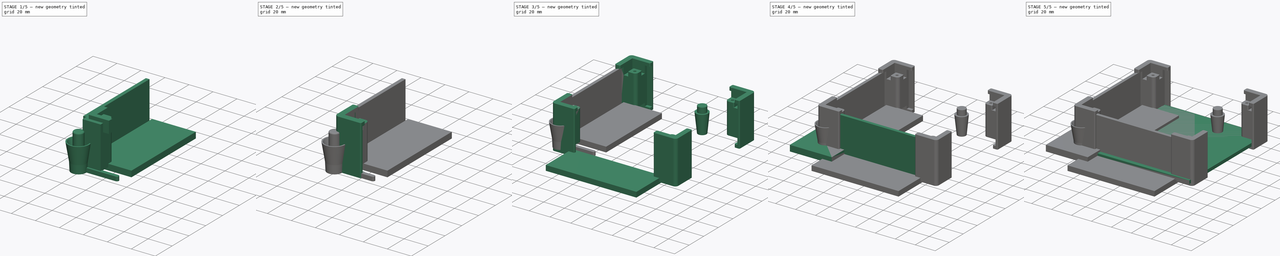
[diagram: build sequence overview — one tinted view per stage of 5, left to right]
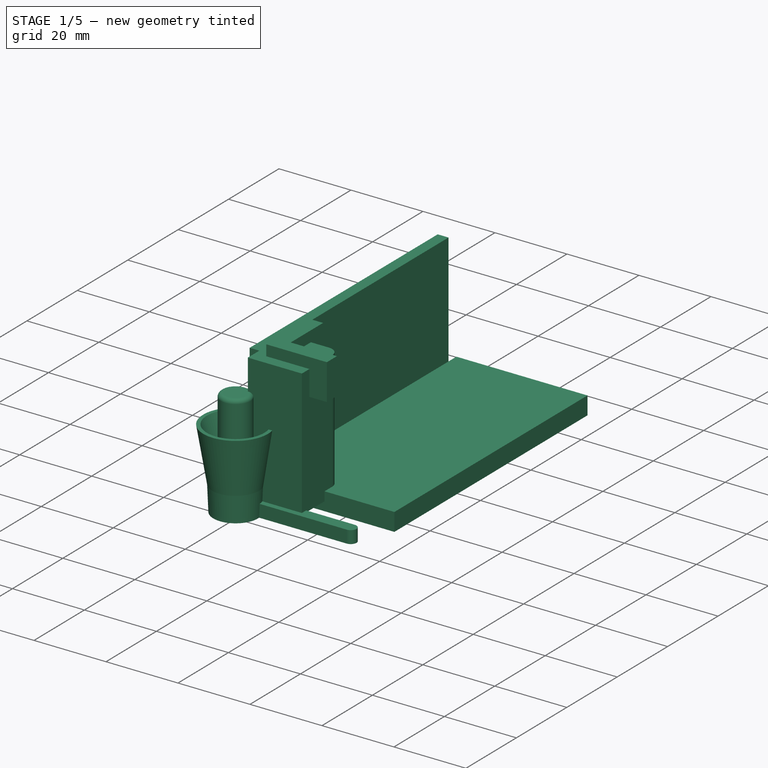
[diagram: stage 1 of 5 — iso view after this stage's code; geometry added in this stage tinted green]
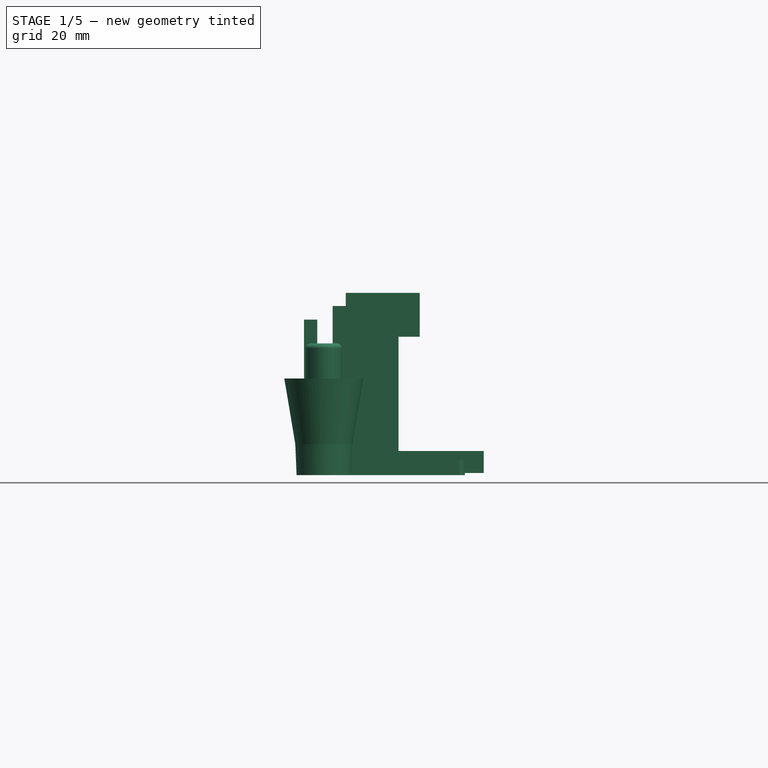
[diagram: stage 1 of 5 — front view after this stage's code; geometry added in this stage tinted green]
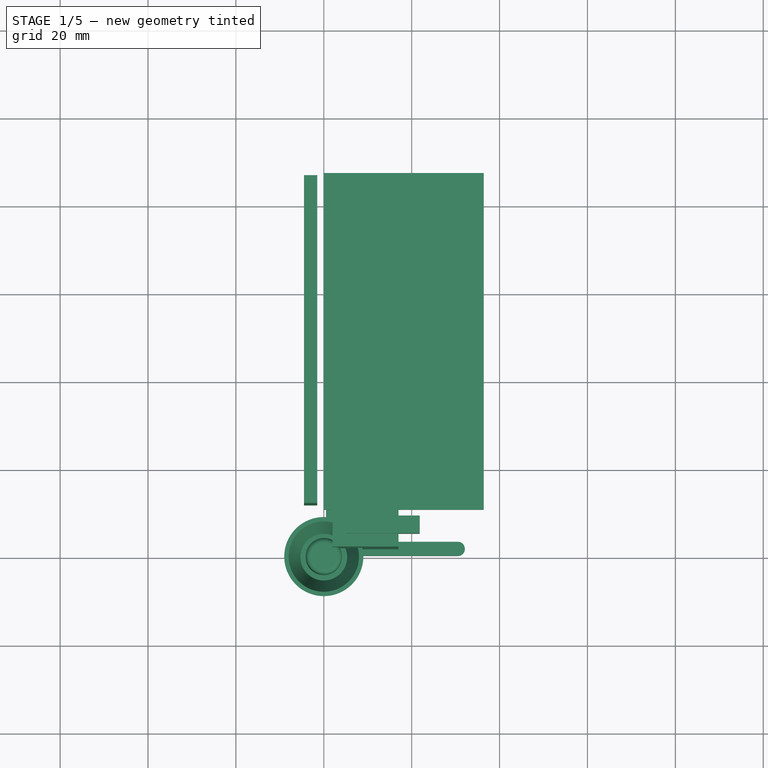
[diagram: stage 1 of 5 — top view after this stage's code; geometry added in this stage tinted green]
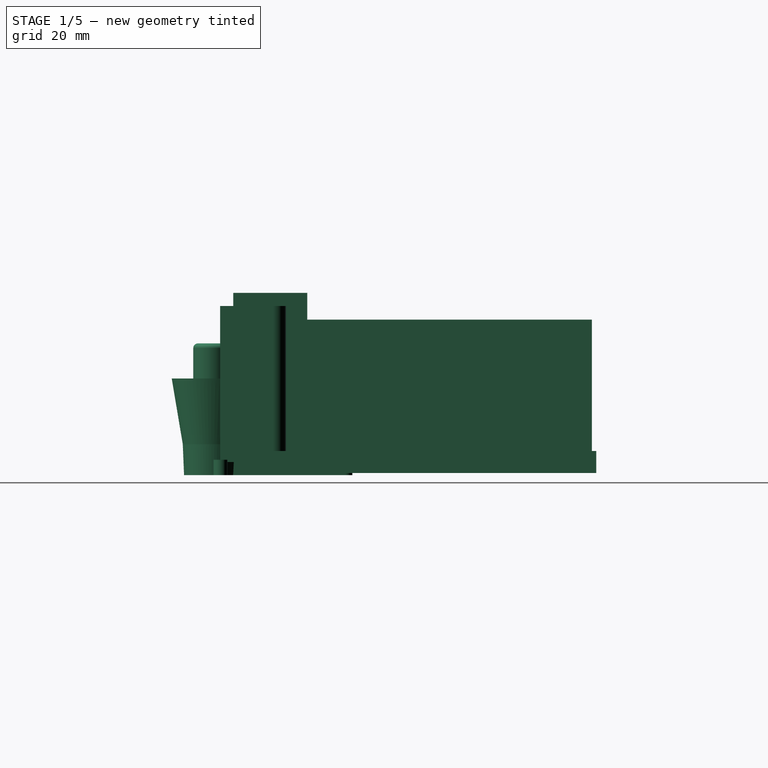
[diagram: stage 1 of 5 — right view after this stage's code; geometry added in this stage tinted green]
FCSTD DOCUMENT  (FreeCAD 0.20R29410 (Git))
Label: brush_timer
License: All rights reserved
LicenseURL: http://en.wikipedia.org/wiki/All_rights_reserved
objects: Path::FeaturePython×17, Sketcher::SketchObject×12, Part::FeaturePython×11, App::DocumentObjectGroup×10, Part::Box×7, App::FeaturePython×5, PartDesign::Body×5, Path::FeatureCompoundPython×5, App::Part×5, PartDesign::Pad×4, PartDesign::Hole×4, Part::Cylinder×4, Part::Compound×4, Part::Fillet×3, Part::Cut×3, Part::MultiFuse×2, Part::Feature×2, Part::Extrusion×2, Part::Mirroring×2, PartDesign::Plane×1, +4 more types
note: 83 computed .brp shape members not serialized (recipe doc carries the construction recipe); baked Part::Feature solids carry a one-line shape summary decoded from their .brp

FEATURE [Part::Box] Box020  label="Cube020"
  AttacherType = Attacher::AttachEngine3D
  Height = 35.5
  Length = 15
  Placement = pos=(2,2,3) rot=(0,0,1;0rad)
  Width = 15
  expr: .Placement.Base.x = <<cp>>.side_wall_width
  expr: .Placement.Base.y = <<cp>>.side_wall_width
  expr: .Placement.Base.z = <<cp>>.top_bottom_wall
  expr: Height = <<cp>>.internal_height + 2 * <<cp>>.top_bottom_plate_height
  expr: Length = <<cp>>.side_size - <<cp>>.side_wall_width - <<cp>>.side_plate_space
  expr: Width = <<cp>>.side_size - <<cp>>.side_wall_width - <<cp>>.side_plate_space
FEATURE [Part::Fillet] Fillet001
  Base = -> Box020
  Edges = 1 edges r=3: [Edge7]
FEATURE [PartDesign::Body] Body003  label="button body"
  Group = -> [Sketch014,Pad007,DatumPlane,Sketch015,AdditiveLoft]
  Origin = -> Origin003
  Tip = -> AdditiveLoft
FEATURE [Part::Box] Box022  label="other wall cube"
  AttacherType = Attacher::AttachEngine3D
  Height = 34.4
  Length = 74.6
  Placement = pos=(-1.5,12,1) rot=(0,0,1;1.5708rad)
  Width = 3
FEATURE [Part::Compound] Compound003  label="other wall compound"
  Links = -> [Box022]
FEATURE [Part::Feature] Compound003_solid  label="other wall compound (Solid)"
  Placement = pos=(0,0,0) rot=(0,1,0;1.5708rad)
  shape: bbox 34.4 x 74.6 x 3 mm, 6 faces (baked)
FEATURE [App::FeaturePython] SetupSheet004  # Path/CAM operation (typed FeaturePython)
  ClearanceHeightExpression = OpStockZMax+SetupSheet004.ClearanceHeightOffset
  ClearanceHeightOffset = 0
  CoolantMode = 0
  CoolantModes = None | Flood | Mist
  FinalDepthExpression = OpFinalDepth
  HorizRapid = 100
  SafeHeightExpression = OpStockZMax+SetupSheet004.SafeHeightOffset
  SafeHeightOffset = 0
  StartDepthExpression = OpStartDepth
  StepDownExpression = OpToolDiameter
  VertRapid = 100
FEATURE [Part::FeaturePython] Clone005  label="Model-other wall compound (Solid)"  # Draft clone (typed FeaturePython)
  AttacherType = Attacher::AttachEngine3D
  Fuse = false
  Objects = -> [Compound003_solid]
  PathResource = Model
  Placement = pos=(0,0,0) rot=(0,1,0;1.5708rad)
  Scale = (1,1,1)
FEATURE [App::DocumentObjectGroup] Model004
  Group = -> [Clone005]
FEATURE [Part::FeaturePython] Stock006  # WARN: FeaturePython — macro-defined, semantics opaque (R4)
  Base = -> Model004
  ExtXneg = 1
  ExtXpos = 1
  ExtYneg = 1
  ExtYpos = 1
  ExtZneg = 1
  ExtZpos = 1
  Placement = pos=(1,12,1.5) rot=(0,0,1;0rad)
  StockType = FromBase
FEATURE [Path::FeaturePython] T3__laser001  label="T3: laser001"  # Path/CAM operation (typed FeaturePython)
  HorizFeed = 0.5
  HorizRapid = 100
  SpindleDir = 0
  SpindleSpeed = 1000
  ToolNumber = 3
  VertFeed = 0.5
  VertRapid = 100
  expr: HorizRapid = SetupSheet004.HorizRapid
  expr: VertRapid = SetupSheet004.VertRapid
FEATURE [Path::FeaturePython] Contour003  # Path/CAM operation (typed FeaturePython)
  Active = true
  AreaParams:
    Tolerance = 1e-07
    FitArcs = True
    Simplify = False
    CleanDistance = 0.0
    Accuracy = 0.01
    Unit = 1.0
    MinArcPoints = 4
    MaxArcPoints = 100
    ClipperScale = 10000000.0
    Fill = 0
    Coplanar = 2
    Reorient = True
    Outline = False
    Explode = False
    OpenMode = 0
    Deflection = 0.01
    SubjectFill = 0
    ClipFill = 0
    Offset = 0.1
    ExtraPass = 0
    Stepover = 0.0
    LastStepover = 0.0
    JoinType = 0
    EndType = 0
    MiterLimit = 2.0
    RoundPrecision = 0.0
    PocketMode = 0
    ToolRadius = 1.0
    PocketExtraOffset = 0.0
    PocketStepover = 0.0
    PocketLastStepover = 0.0
    FromCenter = False
    Angle = 45.0
    AngleShift = 0.0
    Shift = 0.0
    Thicken = False
    SectionCount = -1
    Stepdown = 1.0
    SectionOffset = 0.0
    SectionTolerance = 1e-06
    SectionMode = 2
    Project = False
  ClearanceHeight = 5.5
  Direction = 0
  FinalDepth = 0.5
  JoinType = 0
  MiterLimit = 0.1
  OffsetExtra = 0
  OpFinalDepth = 0.5
  OpStartDepth = 5.5
  OpStockZMax = 5.5
  OpStockZMin = 0.5
  OpToolDiameter = 0.2
  PathParams = {'orientation': 1, 'feedrate': 0.5, 'feedrate_v': 0.5, 'verbose': True, 'resume_height': 5.500000000000009, 'retraction': 5.500000000000009, 'return_end': True, 'preamble': False}
  SafeHeight = 5.5
  Side = 0
  StartDepth = 0
  StartPoint = (0,0,0)
  StepDown = 0.2
  ToolController = -> T3__laser001
  UseComp = true
  UseStartPoint = false
  expr: ClearanceHeight = OpStockZMax + SetupSheet004.ClearanceHeightOffset
  expr: FinalDepth = OpFinalDepth
  expr: SafeHeight = OpStockZMax + SetupSheet004.SafeHeightOffset
  expr: StepDown = OpToolDiameter
FEATURE [Path::FeatureCompoundPython] Operations004  # Path/CAM operation (typed FeaturePython)
  Group = -> [Contour003]
  UsePlacements = false
FEATURE [App::DocumentObjectGroup] Tools
FEATURE [Path::FeaturePython] Job  label="Bottom plate job"  # Path/CAM operation (typed FeaturePython)
  CycleTime = 00:00:00
  Fixtures = G54
  GeometryTolerance = 0.01
  JobType = 0
  Model = -> Model
  Operations = -> Operations
  OrderOutputBy = 0
  PostProcessor = 1
  PostProcessorOutputFile = <userpath>/work/roborep/gcode/timer_bottom.gcode
  SetupSheet = -> SetupSheet
  SplitOutput = false
  Stock = -> Stock
  Tools = -> Tools
FEATURE [App::DocumentObjectGroup] Tools001  label="Tools"
  Group = -> [T2__drill_3]
FEATURE [Path::FeaturePython] Job001  label="Top plate job"  # Path/CAM operation (typed FeaturePython)
  CycleTime = 00:00:00
  Fixtures = G54
  GeometryTolerance = 0.01
  JobType = 0
  Model = -> Model001
  Operations = -> Operations001
  OrderOutputBy = 0
  PostProcessor = 1
  PostProcessorOutputFile = <userpath>/work/roborep/gcode
  SetupSheet = -> SetupSheet001
  SplitOutput = false
  Stock = -> Stock001
  Tools = -> Tools001
FEATURE [App::DocumentObjectGroup] Tools002  label="Tools"
  Group = -> [T1__reamer_2]
FEATURE [Path::FeaturePython] Job002  label="10mm hole job"  # Path/CAM operation (typed FeaturePython)
  CycleTime = 00:00:00
  Fixtures = G54
  GeometryTolerance = 0.01
  JobType = 0
  Model = -> Model002
  Operations = -> Operations002
  OrderOutputBy = 0
  PostProcessor = 1
  PostProcessorOutputFile = <userpath>/work/roborep/gcode
  SetupSheet = -> SetupSheet002
  SplitOutput = false
  Stock = -> Stock002
  Tools = -> Tools002
FEATURE [App::DocumentObjectGroup] Tools003  label="Tools"
  Group = -> [T3__laser]
FEATURE [Path::FeaturePython] Job003  label="wall job"  # Path/CAM operation (typed FeaturePython)
  CycleTime = 00:00:00
  Fixtures = G54
  GeometryTolerance = 0.01
  JobType = 0
  Model = -> Model003
  Operations = -> Operations003
  OrderOutputBy = 0
  PostProcessor = 1
  PostProcessorOutputFile = <userpath>/work/roborep/freecad/brush_timer/wall.gcode
  SetupSheet = -> SetupSheet003
  SplitOutput = false
  Stock = -> Stock005
  Tools = -> Tools003
FEATURE [App::DocumentObjectGroup] Tools004  label="Tools"
  Group = -> [T3__laser001]
FEATURE [Path::FeaturePython] Job004  label="other wall job"  # Path/CAM operation (typed FeaturePython)
  CycleTime = 00:00:00
  Fixtures = G54
  GeometryTolerance = 0.01
  JobType = 0
  Model = -> Model004
  Operations = -> Operations004
  OrderOutputBy = 0
  PostProcessor = 1
  PostProcessorOutputFile = <userpath>/work/roborep/freecad/brush_timer/other_wall.gcode
  SetupSheet = -> SetupSheet004
  SplitOutput = false
  Stock = -> Stock006
  Tools = -> Tools004
FEATURE [Part::Box] Box023  label="Cube022"
  AttacherType = Attacher::AttachEngine3D
  Height = 6
  Length = 30
  Placement = pos=(5,5,35.5) rot=(0,0,1;0rad)
  Width = 30
  expr: .Placement.Base.x = <<cp>>.side_wall_width + <<cp>>.side_plate_width
  expr: .Placement.Base.y = <<cp>>.side_wall_width + <<cp>>.side_plate_width
  expr: Height = <<cp>>.top_bottom_plate_height + <<cp>>.top_bottom_wall
FEATURE [Sketcher::SketchObject] Sketch017
  FullyConstrained = false
  sketch-geometry (6):
    g0: LineSegment StartX=0 StartY=0 StartZ=0 EndX=0 EndY=16.8463 EndZ=0
    g1: LineSegment StartX=0 StartY=16.8463 StartZ=0 EndX=4 EndY=16.8463 EndZ=0
    g2: LineSegment StartX=4 StartY=16.8463 StartZ=0 EndX=4 EndY=4 EndZ=0
    g3: LineSegment StartX=4 StartY=4 StartZ=0 EndX=16.8463 EndY=4 EndZ=0
    g4: LineSegment StartX=16.8463 StartY=4 StartZ=0 EndX=16.8463 EndY=0 EndZ=0
    g5: LineSegment StartX=16.8463 StartY=0 StartZ=0 EndX=0 EndY=0 EndZ=0
  constraints (16):
    c: Coincident(g0,g-1)
    c: PointOnObject(g0,g-2)
    c: Coincident(g1,g0)
    c: Coincident(g2,g1)
    c: Vertical(g2)
    c: Coincident(g3,g2)
    c: Horizontal(g3)
    c: Coincident(g4,g3)
    c: PointOnObject(g4,g-1)
    c: Vertical(g4)
    c: Coincident(g5,g4)
    c: Coincident(g5,g0)
    c: Horizontal(g1)
    c: Equal(g1,g4)
    c: Equal(g5,g0)
    c: DistanceX(g1,g1) = 4
FEATURE [Part::Extrusion] Extrude
  Base = -> Sketch017
  Dir = (0,0,1)
  DirMode = 2
  FaceMakerClass = Part::FaceMakerBullseye
  LengthFwd = 10
  LengthRev = 0
  Placement = pos=(5,5,31.5) rot=(0,0,1;0rad)
  Solid = true
  Symmetric = false
  expr: .Placement.Base.x = <<Cube022>>.Placement.Base.x
  expr: .Placement.Base.y = <<Cube022>>.Placement.Base.y
  expr: .Placement.Base.z = <<Cube022>>.Placement.Base.z - 4mm
FEATURE [App::Part] Part002  label="wall"
  Group = -> [Body005,Part__Mirroring001,Box,Compound,Compound001,Part__Mirroring002,Compound002,Box022,Compound003]
  Origin = -> Origin020
FEATURE [Sketcher::SketchObject] Sketch018
  FullyConstrained = false
  Placement = pos=(0,0,0) rot=(1,0,0;1.5708rad)
  sketch-geometry (14):
    g0: LineSegment StartX=6.49125 StartY=7.02607 StartZ=0 EndX=9 EndY=22 EndZ=0
    g1: LineSegment StartX=9 StartY=22 StartZ=0 EndX=8 EndY=22 EndZ=0
    g2: LineSegment StartX=8 StartY=22 StartZ=0 EndX=5.31082 EndY=14.3537 EndZ=0
    g3: LineSegment StartX=5.31082 StartY=14.3537 StartZ=0 EndX=4.1 EndY=14.3537 EndZ=0
    g4: LineSegment StartX=4.1 StartY=14.3537 StartZ=0 EndX=4.1 EndY=28.9 EndZ=0
    g5: LineSegment StartX=3 StartY=30 StartZ=0 EndX=0 EndY=30 EndZ=0
    g6: LineSegment StartX=0 StartY=30 StartZ=0 EndX=0 EndY=5 EndZ=0
    g7: ArcOfCircle CenterX=3 CenterY=28.9 CenterZ=0 NormalX=0 NormalY=0 NormalZ=1 AngleXU=0 Radius=1.1 StartAngle=1.1e-15 EndAngle=1.5708
    g8: LineSegment StartX=6.49125 StartY=7.02607 StartZ=0 EndX=6.2 EndY=0 EndZ=0
    g9: LineSegment StartX=6.2 StartY=0 StartZ=0 EndX=5 EndY=0 EndZ=0
    g10: LineSegment StartX=2.5 StartY=5 StartZ=0 EndX=0 EndY=5 EndZ=0
    g11: LineSegment StartX=2.5 StartY=5 StartZ=0 EndX=3.07771 EndY=4.87776 EndZ=0
    g12: LineSegment StartX=3.07771 StartY=4.87776 StartZ=0 EndX=5 EndY=3.7255 EndZ=0
    g13: LineSegment StartX=5 StartY=3.7255 StartZ=0 EndX=5 EndY=0 EndZ=0
  constraints (34):
    c: Coincident(g1,g0)
    c: Horizontal(g1)
    c: Coincident(g2,g1)
    c: Coincident(g3,g2)
    c: Horizontal(g3)
    c: Vertical(g4)
    c: PointOnObject(g5,g-2)
    c: Horizontal(g5)
    c: Coincident(g6,g5)
    c: Vertical(g6)
    c: DistanceX(g-1,g0) = 9
    c: DistanceX(g1,g1) = 1
    c: Coincident(g3,g4)
    c: DistanceX(g6,g3) = 4.1
    c: Tangent(g4,g7) = -1.5708
    c: Tangent(g5,g7) = -1.5708
    c: DistanceX(g5,g5) = 3
    c: Coincident(g8,g0)
    c: PointOnObject(g8,g-1)
    c: Coincident(g9,g8)
    c: Horizontal(g9)
    c: Horizontal(g10)
    c: DistanceY(g-1,g5) = 30
    c: DistanceY(g-1,g10) = 5
    c: Coincident(g6,g10)
    c: DistanceX(g9,g9) = 1.2
    c: DistanceX(g10,g10) = 2.5
    c: Coincident(g11,g10)
    c: Coincident(g12,g11)
    c: DistanceX(g-1,g12) = 5
    c: Coincident(g13,g12)
    c: Coincident(g13,g9)
    c: Vertical(g13)
    c: DistanceY(g-1,g0) = 22
FEATURE [Part::Revolution] Revolve
  Angle = 360
  Axis = (0,0,1)
  Base = (0,0,0)
  FaceMakerClass = Part::FaceMakerBullseye
  Solid = true
  Source = -> Sketch018
  Symmetric = false
FEATURE [App::Part] Part003  label="button001"
  Group = -> [Revolve]
  Origin = -> Origin021
FEATURE [Sketcher::SketchObject] Sketch019
  FullyConstrained = true
  sketch-geometry (6):
    g0: LineSegment StartX=0.5 StartY=0.5 StartZ=0 EndX=0.5 EndY=30.5 EndZ=0
    g1: LineSegment StartX=3.7 StartY=30.5 StartZ=0 EndX=3.7 EndY=3.7 EndZ=0
    g2: LineSegment StartX=3.7 StartY=3.7 StartZ=0 EndX=30.5 EndY=3.7 EndZ=0
    g3: LineSegment StartX=30.5 StartY=0.5 StartZ=0 EndX=0.5 EndY=0.5 EndZ=0
    g4: ArcOfCircle CenterX=2.1 CenterY=30.5 CenterZ=0 NormalX=0 NormalY=0 NormalZ=1 AngleXU=0 Radius=1.6 StartAngle=0 EndAngle=3.14159
    g5: ArcOfCircle CenterX=30.5 CenterY=2.1 CenterZ=0 NormalX=0 NormalY=0 NormalZ=1 AngleXU=0 Radius=1.6 StartAngle=4.71239 EndAngle=7.85398
  constraints (16):
    c: Vertical(g0)
    c: Vertical(g1)
    c: Coincident(g2,g1)
    c: Horizontal(g2)
    c: Coincident(g3,g0)
    c: Horizontal(g3)
    c: Equal(g2,g1)
    c: Equal(g0,g3)
    c: DistanceX(g-1,g0) = 0.5
    c: DistanceY(g-1,g0) = 0.5
    c: DistanceY(g0,g1) = 3.2
    c: Tangent(g5,g2) = 1.5708
    c: Tangent(g5,g3) = 1.5708
    c: Tangent(g4,g1) = 1.5708
    c: Tangent(g4,g0) = 1.5708
    c: DistanceY(g0,g4) = 30
FEATURE [Part::Extrusion] Extrude001
  Base = -> Sketch019
  Dir = (0,0,1)
  DirMode = 2
  FaceMakerClass = Part::FaceMakerBullseye
  LengthFwd = 3.5
  LengthRev = 0
  Solid = true
  Symmetric = false
FEATURE [App::Part] Part004  label="angle bracket part"
  Group = -> [Sketch019,Extrude001]
  Origin = -> Origin022
  Placement = pos=(0,0,29.7) rot=(0,0,1;0rad)
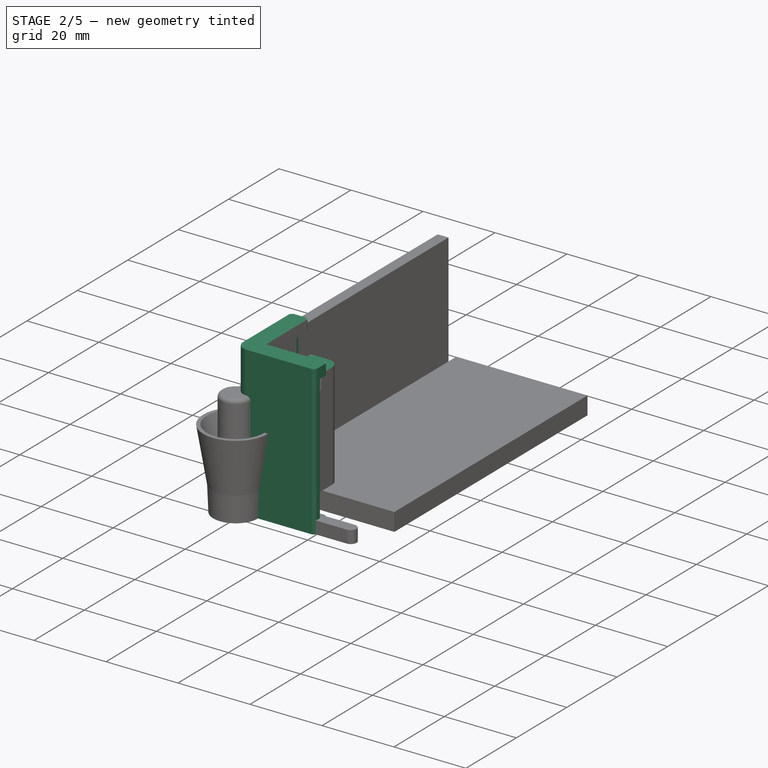
[diagram: stage 2 of 5 — iso view after this stage's code; geometry added in this stage tinted green]
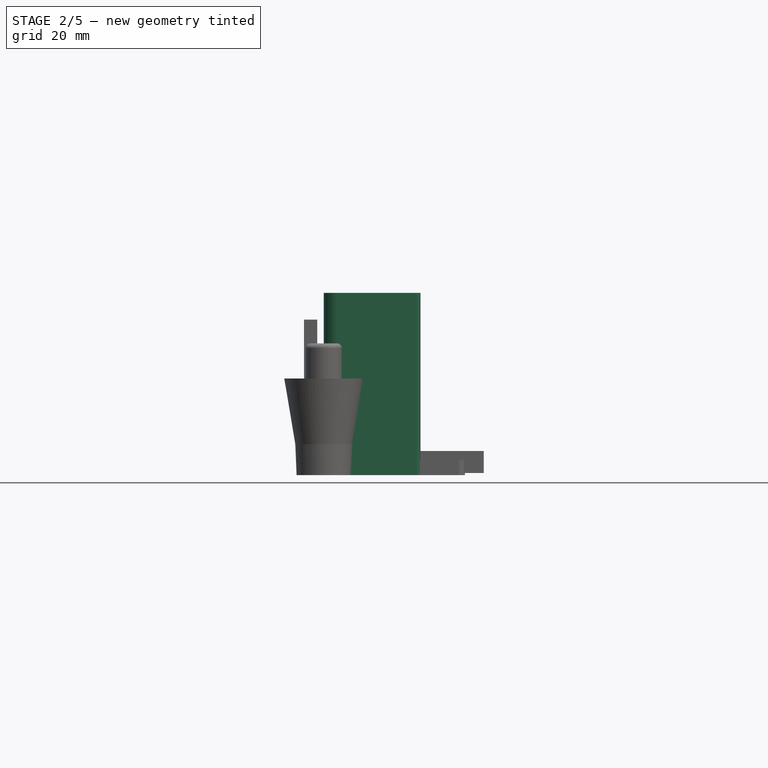
[diagram: stage 2 of 5 — front view after this stage's code; geometry added in this stage tinted green]
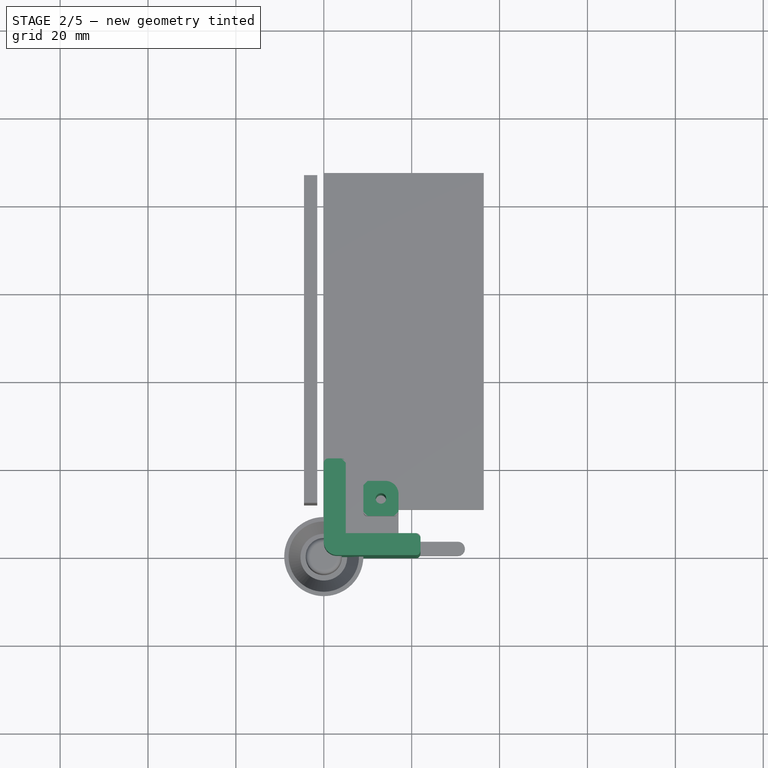
[diagram: stage 2 of 5 — top view after this stage's code; geometry added in this stage tinted green]
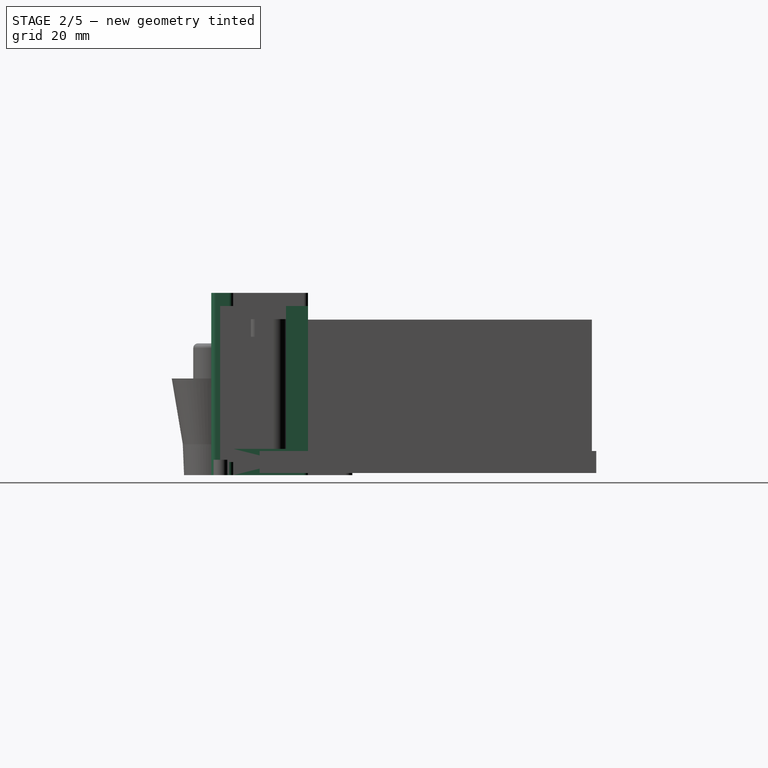
[diagram: stage 2 of 5 — right view after this stage's code; geometry added in this stage tinted green]
FEATURE [Path::FeaturePython] Helix  # Path/CAM operation (typed FeaturePython)
  Active = true
  Base = -> [Clone002]
  ClearanceHeight = 10
  CoolantMode = 0
  Direction = 0
  FinalDepth = -1
  OffsetExtra = 0
  OpFinalDepth = 0
  OpStartDepth = 5
  OpStockZMax = 5
  OpStockZMin = -1
  OpToolDiameter = 2
  SafeHeight = 8
  StartDepth = 3
  StartRadius = 0
  StartSide = 1
  StepDown = 2
  StepOver = 100
  ToolController = -> T1__reamer_2
  expr: ClearanceHeight = OpStockZMax + SetupSheet002.ClearanceHeightOffset
  expr: SafeHeight = OpStockZMax + SetupSheet002.SafeHeightOffset
  expr: StepDown = OpToolDiameter
FEATURE [Path::FeatureCompoundPython] Operations002  # Path/CAM operation (typed FeaturePython)
  Group = -> [Helix]
  UsePlacements = false
FEATURE [Part::Box] Box018  label="Cube018"
  AttacherType = Attacher::AttachEngine3D
  Height = 41.5
  Length = 22
  Width = 22
  expr: Height = <<cp>>.internal_height + 2 * <<cp>>.top_bottom_plate_height + 2 * <<cp>>.top_bottom_wall
  expr: Length = <<cp>>.side_size
  expr: Width = <<cp>>.side_size
FEATURE [Part::Box] Box019  label="Cube019"
  AttacherType = Attacher::AttachEngine3D
  Height = 35.5
  Length = 22
  Placement = pos=(2,2,3) rot=(0,0,1;0rad)
  Width = 22
  expr: .Placement.Base.x = <<cp>>.side_wall_width
  expr: .Placement.Base.y = <<cp>>.side_wall_width
  expr: .Placement.Base.z = <<cp>>.top_bottom_wall
  expr: Height = <<cp>>.internal_height + 2 * <<cp>>.top_bottom_plate_height
FEATURE [Part::Box] Box021  label="Cube021"
  AttacherType = Attacher::AttachEngine3D
  Height = 6
  Length = 30
  Placement = pos=(5,5,0) rot=(0,0,1;0rad)
  Width = 30
  expr: .Placement.Base.x = <<cp>>.side_wall_width + <<cp>>.side_plate_width
  expr: .Placement.Base.y = <<cp>>.side_wall_width + <<cp>>.side_plate_width
  expr: Height = <<cp>>.top_bottom_plate_height + <<cp>>.top_bottom_wall
FEATURE [Part::Cylinder] Cylinder011
  Angle = 360
  AttacherType = Attacher::AttachEngine3D
  FirstAngle = 0
  Height = 70
  Placement = pos=(13,13,-17) rot=(0,0,1;0rad)
  Radius = 1.2
  SecondAngle = 0
  expr: .Placement.Base.x = <<cp>>.side_wall_width + <<cp>>.side_plate_width + <<cp>>.hole_offset
  expr: .Placement.Base.y = <<cp>>.side_wall_width + <<cp>>.side_plate_width + <<cp>>.hole_offset
  expr: Radius = <<cp>>.hole_r
FEATURE [Spreadsheet::Sheet] Spreadsheet  label="cp"
  cells = A1=side_size; B1(side_size)=22; A2=internal_height; B2(internal_height)=29.5; A3=top_bottom_wall; B3(top_bottom_wall)=3; A4=top_bottom_plate_height; B4(top_bottom_plate_height)=3; A5=side_plate_width; B5(side_plate_width)=3; A6=side_plate_space; B6(side_plate_space)=5; A7=side_wall_width; B7(side_wall_width)=2; A8=hole_r; B8(hole_r)=1.2; A9=hole_offset; B9(hole_offset)=8
FEATURE [Part::Fillet] Fillet
  Base = -> Box018
  Edges = 1 edges r=3: [Edge1]
FEATURE [Part::Cut] Cut
  Base = -> Fillet
  Tool = -> Box019
FEATURE [Part::MultiFuse] Fusion007
  Shapes = -> [Cut,Fillet001]
FEATURE [Part::MultiFuse] Fusion
  Shapes = -> [Box021,Cylinder011,Box023,Extrude]
FEATURE [Part::Cut] Cut008
  Base = -> Fusion007
  Tool = -> Fusion
FEATURE [Part::Fillet] Fillet002  label="corner part fillet"
  Base = -> Cut008
  Edges = 9 edges r=1: [Edge3,Edge15,Edge19,Edge36,Edge40,Edge41,Edge57,Edge66,Edge81]
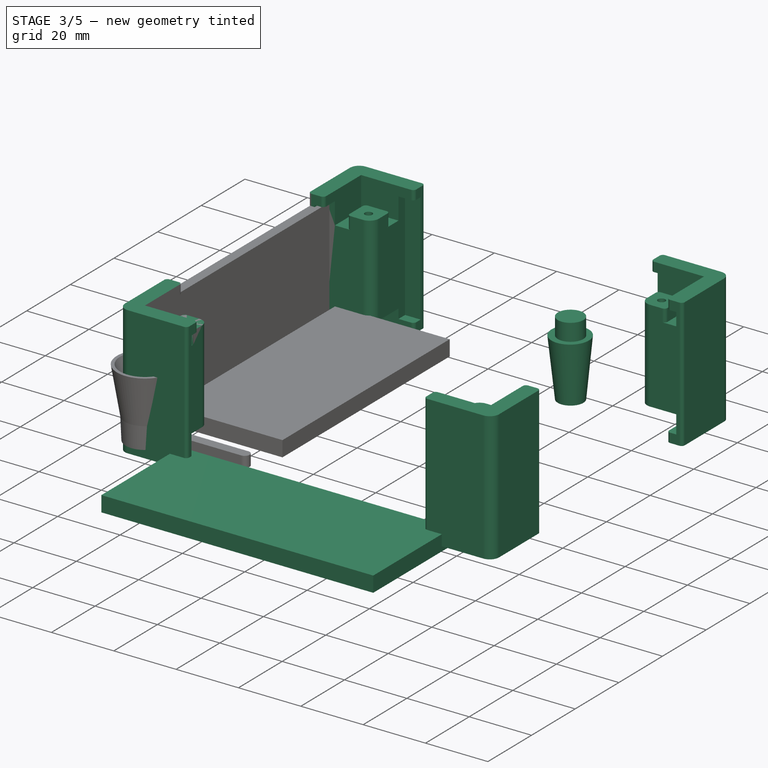
[diagram: stage 3 of 5 — iso view after this stage's code; geometry added in this stage tinted green]
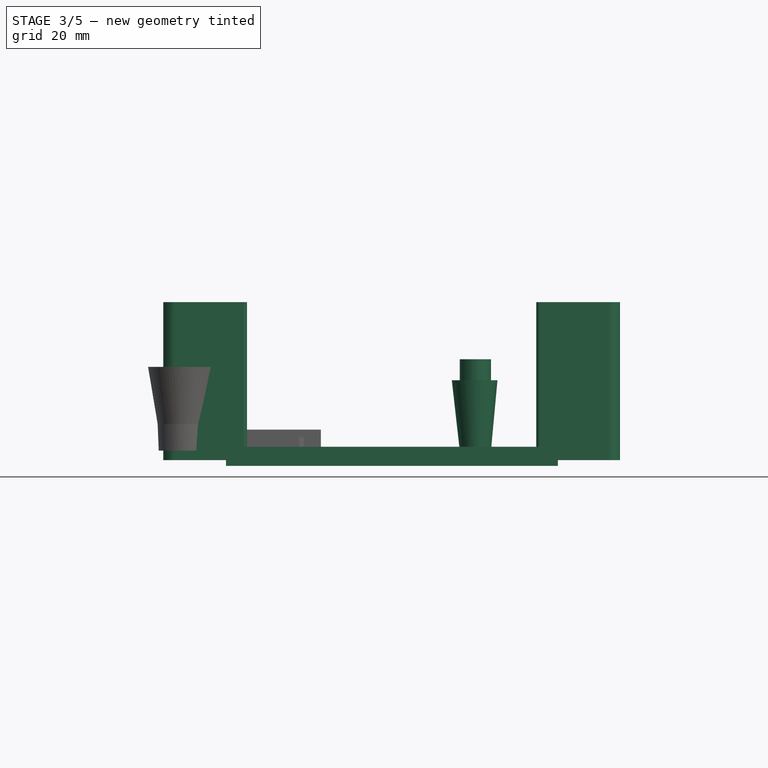
[diagram: stage 3 of 5 — front view after this stage's code; geometry added in this stage tinted green]
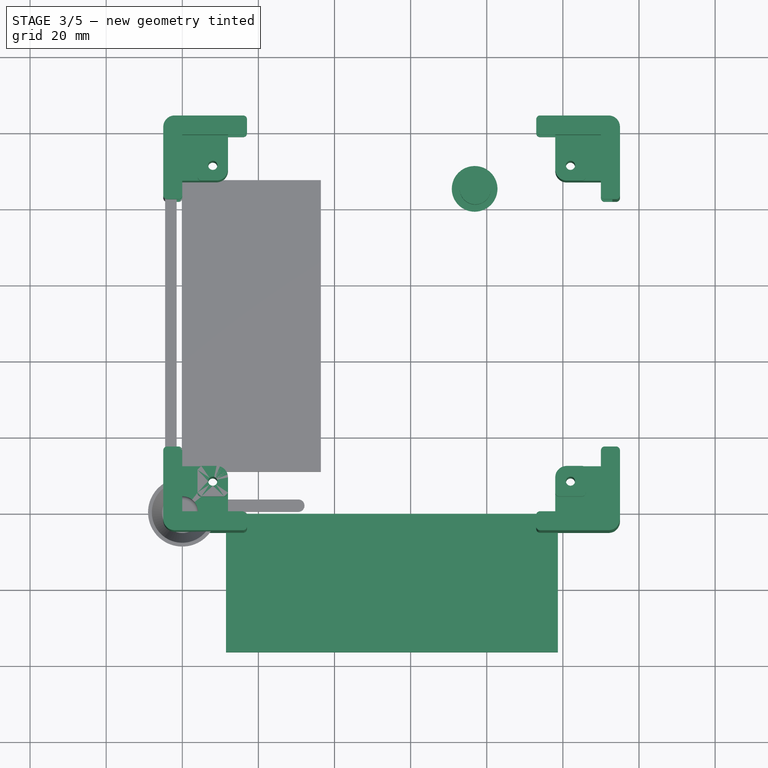
[diagram: stage 3 of 5 — top view after this stage's code; geometry added in this stage tinted green]
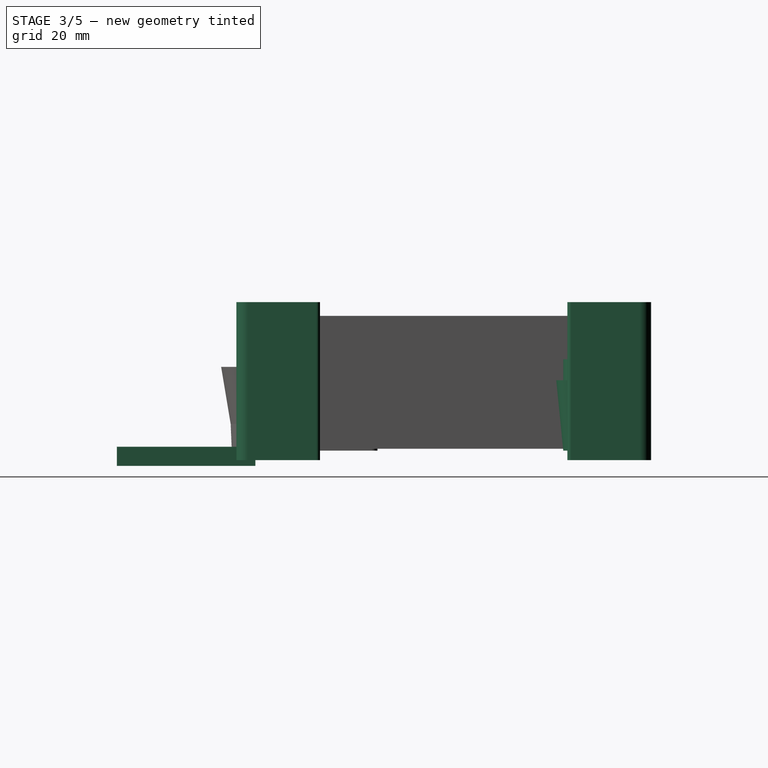
[diagram: stage 3 of 5 — right view after this stage's code; geometry added in this stage tinted green]
FEATURE [Path::FeaturePython] Drilling001  # Path/CAM operation (typed FeaturePython)
  Active = true
  AddTipLength = false
  Base = -> [Clone001]
  ClearanceHeight = 8.2
  CoolantMode = 0
  DwellEnabled = false
  DwellTime = 0
  FinalDepth = -1
  OpFinalDepth = 0
  OpStartDepth = 3.2
  OpStockZMax = 3.2
  OpStockZMin = 0
  OpToolDiameter = 3
  PeckDepth = 0
  PeckEnabled = false
  RetractHeight = 10
  ReturnLevel = 0
  SafeHeight = 6.2
  StartDepth = 3.2
  ToolController = -> T2__drill_3
  expr: ClearanceHeight = OpStockZMax + SetupSheet001.ClearanceHeightOffset
  expr: SafeHeight = OpStockZMax + SetupSheet001.SafeHeightOffset
  expr: StartDepth = OpStartDepth
FEATURE [Path::FeaturePython] Pocket_Shape  # Path/CAM operation (typed FeaturePython)
  Active = true
  AreaParams:
    Tolerance = 1e-07
    FitArcs = True
    Simplify = False
    CleanDistance = 0.0
    Accuracy = 0.01
    Unit = 1.0
    MinArcPoints = 4
    MaxArcPoints = 100
    ClipperScale = 10000000.0
    Fill = 0
    Coplanar = 0
    Reorient = True
    Outline = False
    Explode = False
    OpenMode = 0
    Deflection = 0.01
    SubjectFill = 0
    ClipFill = 0
    Offset = 0.0
    ExtraPass = 0
    Stepover = 0.0
    LastStepover = 0.0
    JoinType = 0
    EndType = 0
    MiterLimit = 2.0
    RoundPrecision = 0.0
    PocketMode = 3
    ToolRadius = 1.0
    PocketExtraOffset = 0.0
    PocketStepover = 2.0
    PocketLastStepover = 0.0
    FromCenter = True
    Angle = 45.0
    AngleShift = 0.0
    Shift = 0.0
    Thicken = False
    SectionCount = -1
    Stepdown = 1.0
    SectionOffset = 0.0
    SectionTolerance = 1e-06
    SectionMode = 2
    Project = False
  Base = -> [Clone001]
  ClearanceHeight = 8.2
  CoolantMode = 0
  CutMode = 1
  ExtensionCorners = true
  ExtensionLengthDefault = 0
  ExtraOffset = 0
  FinalDepth = -1
  FinishDepth = -1
  KeepToolDown = false
  MinTravel = false
  OffsetPattern = 2
  OpFinalDepth = 0
  OpStartDepth = 3.2
  OpStockZMax = 3.2
  OpStockZMin = 0
  OpToolDiameter = 2
  PathParams = {'orientation': 0, 'feedrate': 0.5, 'feedrate_v': 0.5, 'verbose': True, 'resume_height': 6.2, 'retraction': 8.2, 'return_end': True, 'preamble': False}
  PocketLastStepOver = 0
  SafeHeight = 6.2
  SplitArcs = false
  StartAt = 0
  StartDepth = 3.2
  StartPoint = (0,0,0)
  StepDown = 2
  StepOver = 100
  ToolController = -> T1__reamer_2
  UseOutline = false
  UseStartPoint = false
  ZigZagAngle = 45
  expr: ClearanceHeight = OpStockZMax + SetupSheet001.ClearanceHeightOffset
  expr: SafeHeight = OpStockZMax + SetupSheet001.SafeHeightOffset
  expr: StartDepth = OpStartDepth
  expr: StepDown = OpToolDiameter
FEATURE [Path::FeatureCompoundPython] Operations001  # Path/CAM operation (typed FeaturePython)
  Group = -> [Drilling001,Pocket_Shape,Contour001]
  UsePlacements = false
FEATURE [Sketcher::SketchObject] Sketch014  label="button"
  FullyConstrained = true
  MapMode = 2
  Support = -> [XY_Plane003]
  sketch-geometry (1):
    g0: Circle CenterX=77 CenterY=85 CenterZ=0 NormalX=0 NormalY=0 NormalZ=1 AngleXU=0 Radius=4.1
  constraints (3):
    c: Radius(g0) = 4.1
    c: DistanceY(g-1,g0) = 85
    c: DistanceX(g-1,g0) = 77
FEATURE [PartDesign::Pad] Pad007
  AllowMultiFace = false
  Direction = (0,0,1)
  Length = 24
  Length2 = 100
  Profile = -> Sketch014
  Refine = true
  Type = 0
FEATURE [App::FeaturePython] SetupSheet003  # Path/CAM operation (typed FeaturePython)
  ClearanceHeightExpression = OpStockZMax+SetupSheet003.ClearanceHeightOffset
  ClearanceHeightOffset = 0
  CoolantMode = 0
  CoolantModes = None | Flood | Mist
  FinalDepthExpression = OpFinalDepth
  HorizRapid = 100
  SafeHeightExpression = OpStockZMax+SetupSheet003.SafeHeightOffset
  SafeHeightOffset = 0
  StartDepthExpression = OpStartDepth
  StepDownExpression = OpToolDiameter
  VertRapid = 100
FEATURE [Path::FeaturePython] T3__laser  label="T3: laser"  # Path/CAM operation (typed FeaturePython)
  HorizFeed = 0.5
  HorizRapid = 100
  SpindleDir = 0
  SpindleSpeed = 1000
  ToolNumber = 3
  VertFeed = 0.5
  VertRapid = 100
  expr: HorizRapid = SetupSheet003.HorizRapid
  expr: VertRapid = SetupSheet003.VertRapid
FEATURE [Part::Feature] Compound001_solid001  label="wall compound (Solid)"
  Placement = pos=(0,0,0) rot=(1,0,0;1.5708rad)
  shape: bbox 85.2 x 34.4 x 3 mm, 6 faces (baked)
FEATURE [Part::FeaturePython] Clone004  label="Model-wall compound (Solid)"  # Draft clone (typed FeaturePython)
  AttacherType = Attacher::AttachEngine3D
  Fuse = false
  Objects = -> [Compound001_solid001]
  PathResource = Model
  Placement = pos=(0,0,0) rot=(1,0,0;1.5708rad)
  Scale = (1,1,1)
FEATURE [App::DocumentObjectGroup] Model003
  Group = -> [Clone004]
FEATURE [Part::FeaturePython] Stock005  # WARN: FeaturePython — macro-defined, semantics opaque (R4)
  Base = -> Model003
  ExtXneg = 1
  ExtXpos = 1
  ExtYneg = 1
  ExtYpos = 1
  ExtZneg = 1
  ExtZpos = 1
  Placement = pos=(12.5,-35.4,-3) rot=(0,0,1;0rad)
  StockType = FromBase
FEATURE [Path::FeaturePython] Contour002  # Path/CAM operation (typed FeaturePython)
  Active = true
  AreaParams:
    Tolerance = 1e-07
    FitArcs = True
    Simplify = False
    CleanDistance = 0.0
    Accuracy = 0.01
    Unit = 1.0
    MinArcPoints = 4
    MaxArcPoints = 100
    ClipperScale = 10000000.0
    Fill = 0
    Coplanar = 2
    Reorient = True
    Outline = False
    Explode = False
    OpenMode = 0
    Deflection = 0.01
    SubjectFill = 0
    ClipFill = 0
    Offset = 0.1
    ExtraPass = 0
    Stepover = 0.0
    LastStepover = 0.0
    JoinType = 0
    EndType = 0
    MiterLimit = 2.0
    RoundPrecision = 0.0
    PocketMode = 0
    ToolRadius = 1.0
    PocketExtraOffset = 0.0
    PocketStepover = 0.0
    PocketLastStepover = 0.0
    FromCenter = False
    Angle = 45.0
    AngleShift = 0.0
    Shift = 0.0
    Thicken = False
    SectionCount = -1
    Stepdown = 1.0
    SectionOffset = 0.0
    SectionTolerance = 1e-06
    SectionMode = 2
    Project = False
  ClearanceHeight = 1
  Direction = 0
  FinalDepth = 0
  JoinType = 0
  MiterLimit = 0.1
  OffsetExtra = 0
  OpFinalDepth = -4
  OpStartDepth = 1
  OpStockZMax = 1
  OpStockZMin = -4
  OpToolDiameter = 0.2
  PathParams = {'orientation': 1, 'feedrate': 0.5, 'feedrate_v': 0.5, 'verbose': True, 'resume_height': 1.000000000000007, 'retraction': 1.000000000000007, 'return_end': True, 'preamble': False}
  SafeHeight = 1
  Side = 0
  StartDepth = 0.1
  StartPoint = (0,0,0)
  StepDown = 0.2
  ToolController = -> T3__laser
  UseComp = true
  UseStartPoint = false
  expr: ClearanceHeight = OpStockZMax + SetupSheet003.ClearanceHeightOffset
  expr: SafeHeight = OpStockZMax + SetupSheet003.SafeHeightOffset
  expr: StepDown = OpToolDiameter
FEATURE [Path::FeatureCompoundPython] Operations003  # Path/CAM operation (typed FeaturePython)
  Group = -> [Contour002]
  UsePlacements = false
FEATURE [PartDesign::AdditiveLoft] AdditiveLoft
  AllowMultiFace = false
  BaseFeature = -> Pad007
  Closed = true
  Profile = -> Sketch014
  Ruled = false
  Sections = -> [Sketch015]
FEATURE [App::Part] Part  label="corner part v3"
  Group = -> [Box020,Cut,Box018,Box019,Box021,Fusion007,Fusion,Cut008,Cylinder011,Spreadsheet,Fillet,Fillet001,Fillet002]
  Origin = -> Origin017
  Placement = pos=(-5,-5,-2.5) rot=(0,0,1;0rad)
FEATURE [PartDesign::FeatureBase] Clone003
  BaseFeature = -> Fillet002
FEATURE [PartDesign::Body] Body005  label="corner part clone"
  BaseFeature = -> Fillet002
  Group = -> [Clone003]
  Origin = -> Origin019
  Placement = pos=(-5,-5,-2.5) rot=(0,0,1;0rad)
  Tip = -> Clone003
FEATURE [Part::Mirroring] Part__Mirroring001  label="corner part clone (Mirror #2)"
  Base = (55,0,0)
  Normal = (1,0,0)
  Source = -> Body005
FEATURE [Part::Compound] Compound  label="corners compound"
  Links = -> [Part__Mirroring001,Body005]
FEATURE [Part::Mirroring] Part__Mirroring002  label="corners compound (Mirror #3)"
  Base = (0,0,0)
  Normal = (0,1,0)
  Placement = pos=(0,99,0) rot=(0,0,1;0rad)
  Source = -> Compound
FEATURE [Part::Compound] Compound002  label="4 corner compound"
  Links = -> [Compound,Part__Mirroring002]
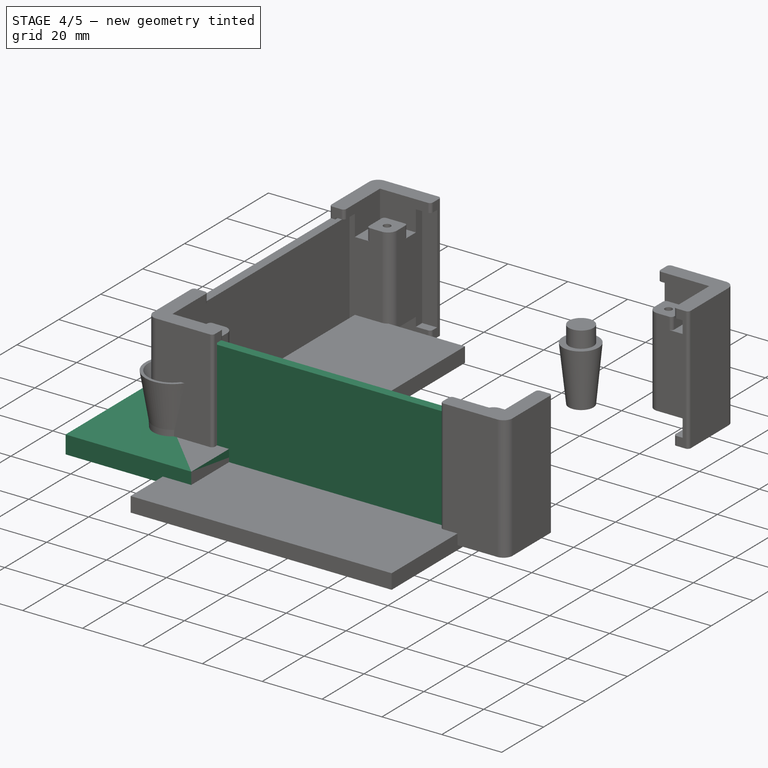
[diagram: stage 4 of 5 — iso view after this stage's code; geometry added in this stage tinted green]
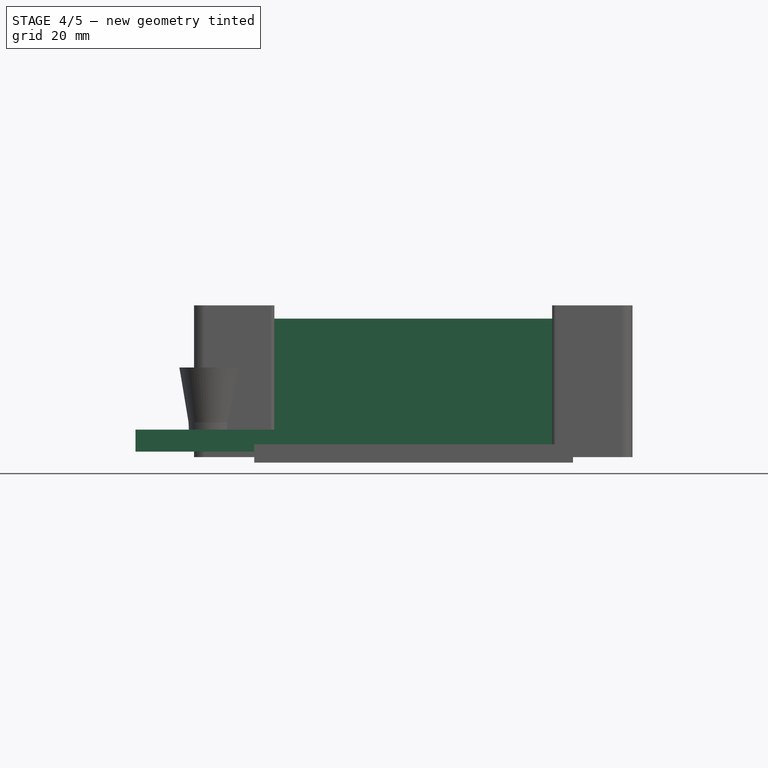
[diagram: stage 4 of 5 — front view after this stage's code; geometry added in this stage tinted green]
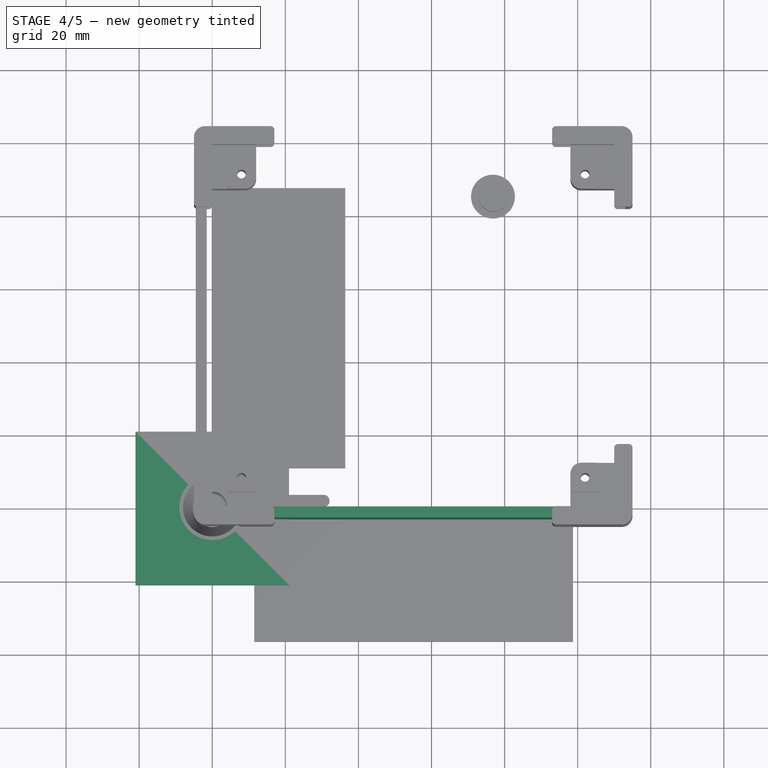
[diagram: stage 4 of 5 — top view after this stage's code; geometry added in this stage tinted green]
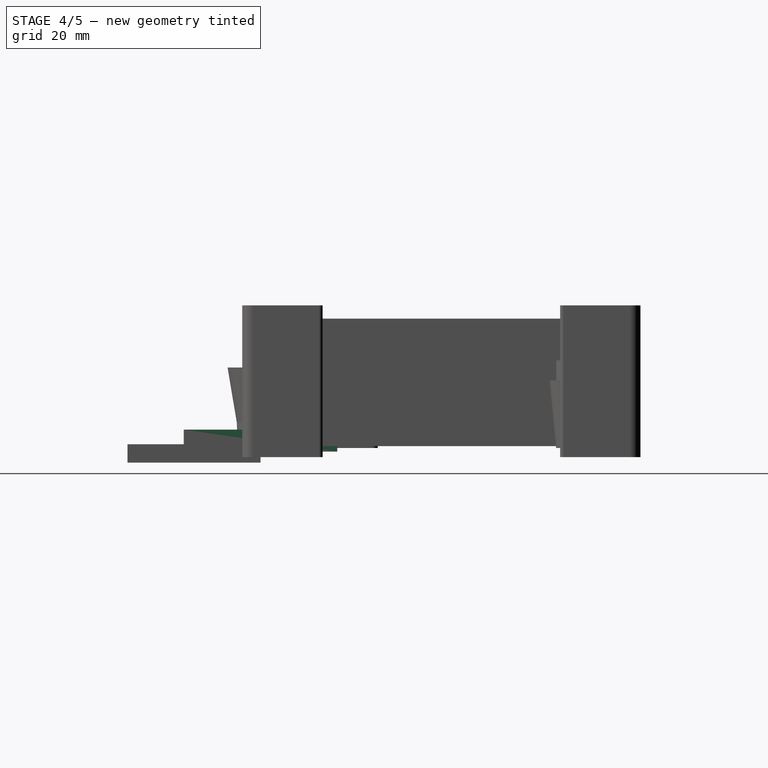
[diagram: stage 4 of 5 — right view after this stage's code; geometry added in this stage tinted green]
FEATURE [PartDesign::Plane] DatumPlane
  AttachmentOffset = pos=(0,0,18.5) rot=(0,0,1;0rad)
  Length = 138.436
  MapMode = 11
  Placement = pos=(77,85,18.5) rot=(0,0,1;1.5708rad)
  ResizeMode = 0
  Support = -> [Pad007]
  Width = 130.187
FEATURE [Sketcher::SketchObject] Sketch015  label="button skirt"
  FullyConstrained = false
  MapMode = 5
  Placement = pos=(77,85,18.5) rot=(0,0,1;1.5708rad)
  Support = -> [DatumPlane]
  sketch-geometry (1):
    g0: Circle CenterX=0.0630226 CenterY=0.185374 CenterZ=0 NormalX=0 NormalY=0 NormalZ=1 AngleXU=0 Radius=6
  constraints (1):
    c: Radius(g0) = 6
FEATURE [Sketcher::SketchObject] Sketch016  label="10mm hole"
  FullyConstrained = false
  MapMode = 5
  Support = -> [XY_Plane004]
  sketch-geometry (5):
    g0: Circle CenterX=0 CenterY=0 CenterZ=0 NormalX=0 NormalY=0 NormalZ=1 AngleXU=0 Radius=5
    g1: LineSegment StartX=-20 StartY=20 StartZ=0 EndX=20 EndY=20 EndZ=0
    g2: LineSegment StartX=20 StartY=20 StartZ=0 EndX=20 EndY=-20 EndZ=0
    g3: LineSegment StartX=20 StartY=-20 StartZ=0 EndX=-20 EndY=-20 EndZ=0
    g4: LineSegment StartX=-20 StartY=-20 StartZ=0 EndX=-20 EndY=20 EndZ=0
  constraints (12):
    c: Coincident(g1,g2)
    c: Coincident(g2,g3)
    c: Coincident(g3,g4)
    c: Coincident(g4,g1)
    c: Horizontal(g3)
    c: Vertical(g4)
    c: Symmetric(g1,g1,g-2)
    c: Symmetric(g2,g1,g-1)
    c: Coincident(g0,g-1)
    c: DistanceX(g1,g1) = 40
    c: DistanceY(g2,g2) = 40
    c: Radius(g0) = 5
FEATURE [PartDesign::Pad] Pad009
  AllowMultiFace = false
  Direction = (1,1,1)
  Length = 4
  Length2 = 100
  Profile = -> Sketch016
  Type = 0
FEATURE [PartDesign::Body] Body004  label="10mm hole body"
  Group = -> [Sketch016,Pad009]
  Origin = -> Origin004
  Tip = -> Pad009
FEATURE [App::FeaturePython] SetupSheet002  # Path/CAM operation (typed FeaturePython)
  ClearanceHeightExpression = OpStockZMax+SetupSheet002.ClearanceHeightOffset
  ClearanceHeightOffset = 5
  CoolantMode = 0
  CoolantModes = None | Flood | Mist
  FinalDepthExpression = OpFinalDepth
  HorizRapid = 0
  SafeHeightExpression = OpStockZMax+SetupSheet002.SafeHeightOffset
  SafeHeightOffset = 3
  StartDepthExpression = OpStartDepth
  StepDownExpression = OpToolDiameter
  VertRapid = 0
FEATURE [Part::FeaturePython] Clone002  label="Model-10mm hole body"  # Draft clone (typed FeaturePython)
  AttacherType = Attacher::AttachEngine3D
  Fuse = false
  Objects = -> [Body004]
  PathResource = Model
  Scale = (1,1,1)
FEATURE [App::DocumentObjectGroup] Model002
  Group = -> [Clone002]
FEATURE [Part::FeaturePython] Stock002  # WARN: FeaturePython — macro-defined, semantics opaque (R4)
  Base = -> Model002
  ExtXneg = 1
  ExtXpos = 1
  ExtYneg = 1
  ExtYpos = 1
  ExtZneg = 1
  ExtZpos = 1
  Placement = pos=(-20,-20,0) rot=(0,0,1;0rad)
  StockType = FromBase
FEATURE [Part::Cylinder] Cylinder  label="external cylinder"
  Angle = 360
  AttacherType = Attacher::AttachEngine3D
  FirstAngle = 0
  Height = 2
  Radius = 5
  SecondAngle = 0
FEATURE [Part::Cylinder] Cylinder012  label="hole"
  Angle = 360
  AttacherType = Attacher::AttachEngine3D
  FirstAngle = 0
  Height = 2
  Radius = 1.8
  SecondAngle = 0
FEATURE [Part::Cut] Cut009
  Base = -> Cylinder
  Tool = -> Cylinder012
FEATURE [Part::FeaturePython] Countersunk  # WARN: FeaturePython — macro-defined, semantics opaque (R4)
  baseObject = -> Cut009
  diameters = Edge5:M3:0:0:Default
FEATURE [Part::Cylinder] Cylinder013  label="test cylinder"
  Angle = 360
  AttacherType = Attacher::AttachEngine3D
  FirstAngle = 0
  Height = 10
  Placement = pos=(0,0,-2) rot=(0,0,1;0rad)
  Radius = 2.75
  SecondAngle = 0
FEATURE [App::Part] Part001  label="washer"
  Group = -> [Cylinder012,Cylinder,Cut009,Countersunk,Cylinder013]
  Origin = -> Origin018
FEATURE [Part::Box] Box  label="wall cube"
  AttacherType = Attacher::AttachEngine3D
  Height = 34.4
  Length = 85.2
  Placement = pos=(12.5,-3,1) rot=(0,0,1;0rad)
  Width = 3
FEATURE [Part::Compound] Compound001  label="wall compound"
  Links = -> [Box]
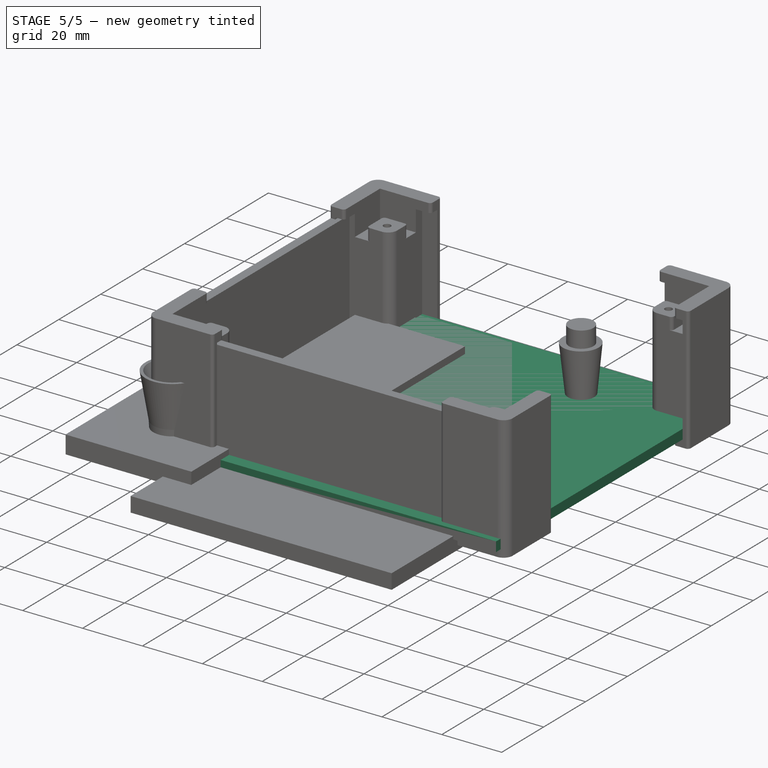
[diagram: stage 5 of 5 — iso view after this stage's code; geometry added in this stage tinted green]
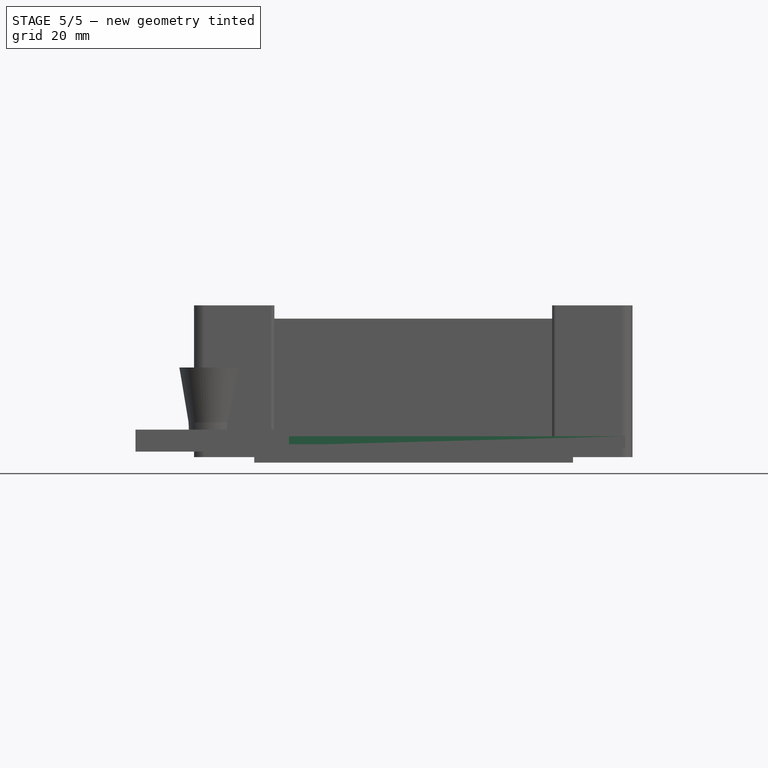
[diagram: stage 5 of 5 — front view after this stage's code; geometry added in this stage tinted green]
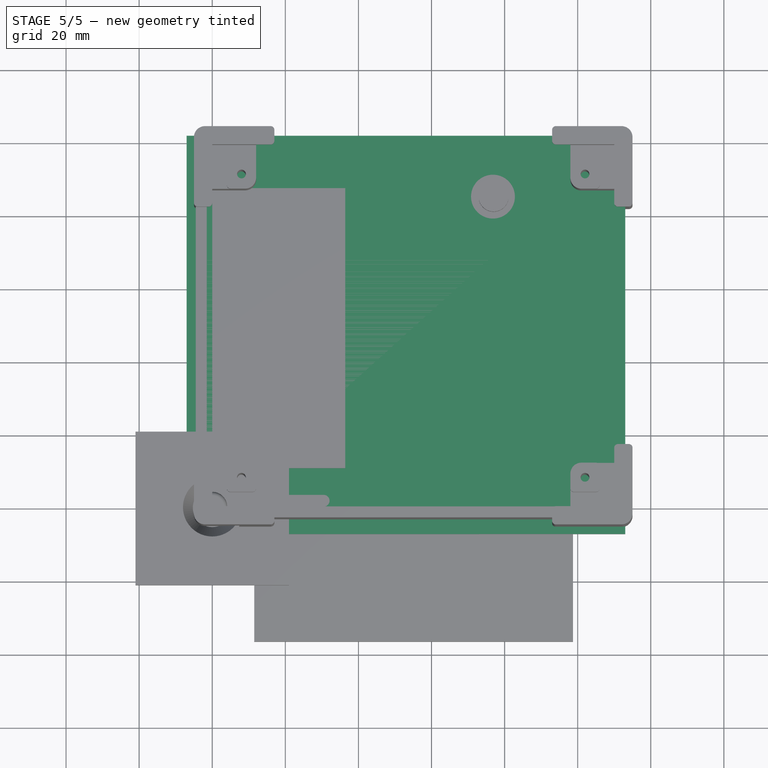
[diagram: stage 5 of 5 — top view after this stage's code; geometry added in this stage tinted green]
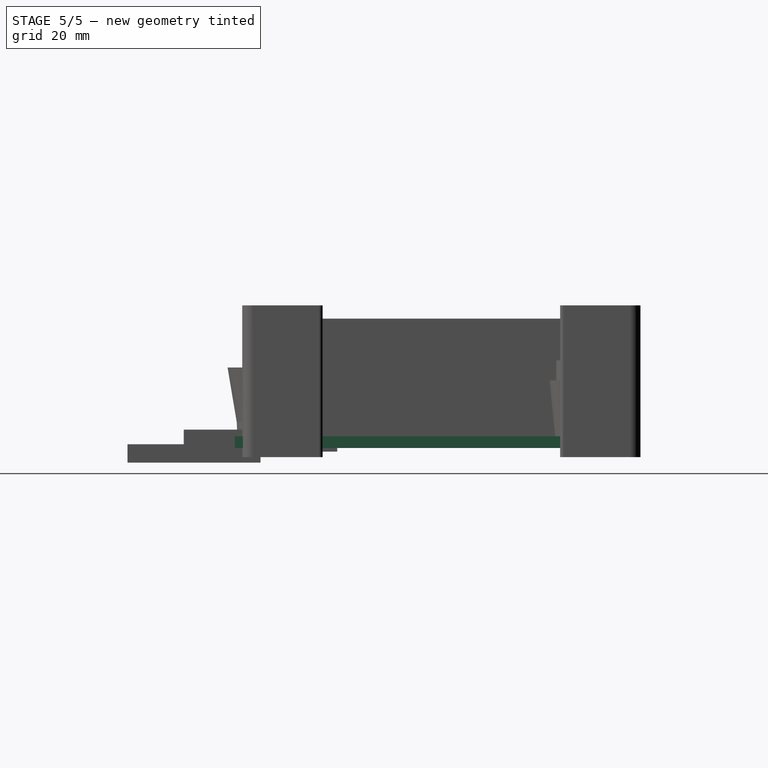
[diagram: stage 5 of 5 — right view after this stage's code; geometry added in this stage tinted green]
FEATURE [Sketcher::SketchObject] Sketch002  label="led array"
  FullyConstrained = false
  MapMode = 5
  Placement = pos=(0,0,4) rot=(0,0,1;0rad)
  sketch-geometry (10):
    g0: LineSegment StartX=41 StartY=86 StartZ=0 EndX=41 EndY=49 EndZ=0
    g1: LineSegment StartX=41 StartY=49 StartZ=0 EndX=13 EndY=49 EndZ=0
    g2: LineSegment StartX=13 StartY=49 StartZ=0 EndX=13 EndY=86 EndZ=0
    g3: LineSegment StartX=13 StartY=86 StartZ=0 EndX=19.3 EndY=90 EndZ=0
    g4: LineSegment StartX=34.7 StartY=90 StartZ=0 EndX=41 EndY=86 EndZ=0
    g5: LineSegment StartX=19.3 StartY=90 StartZ=0 EndX=19.3 EndY=92 EndZ=0
    g6: LineSegment StartX=19.3 StartY=92 StartZ=0 EndX=34.7 EndY=92 EndZ=0
    g7: LineSegment StartX=34.7 StartY=92 StartZ=0 EndX=34.7 EndY=90 EndZ=0
    g8: Circle CenterX=15.4 CenterY=51.4 CenterZ=0 NormalX=0 NormalY=0 NormalZ=1 AngleXU=0 Radius=1.8
    g9: Circle CenterX=38.4 CenterY=51.4 CenterZ=0 NormalX=0 NormalY=0 NormalZ=1 AngleXU=0 Radius=1.8
  constraints (30):
    c: Coincident(g0,g1)
    c: Coincident(g1,g2)
    c: Horizontal(g1)
    c: Vertical(g0)
    c: Equal(g2,g0)
    c: Equal(g4,g3)
    c: Coincident(g4,g0)
    c: Coincident(g3,g2)
    c: DistanceY(g2,g2) = 37
    c: DistanceX(g1,g1) = 28
    c: DistanceY(g0,g4) = 41
    c: DistanceY(g1,g5) = 43
    c: DistanceX(g6,g6) = 15.4
    c: Coincident(g5,g3)
    c: Coincident(g4,g7)
    c: Coincident(g7,g6)
    c: Coincident(g6,g5)
    c: Parallel(g7,g5)
    c: Equal(g7,g5)
    c: Vertical(g5)
    c: Radius(g8) = 1.8
    c: DistanceX(g1,g8) = 2.4
    c: DistanceY(g1,g8) = 2.4
    c: Equal(g9,g8)
    c: DistanceX(g8,g9) = 23
    c: Parallel(g2,g0)
    c: Parallel(g1,g6)
    c: DistanceY(g-1,g1) = 49
    c: DistanceX(g-1,g1) = 13
    c: DistanceY(g8,g9) = 0
FEATURE [Sketcher::SketchObject] Sketch003  label="atmel pcb"
  FullyConstrained = false
  MapMode = 5
  Placement = pos=(0,0,4) rot=(0,0,1;0rad)
  sketch-geometry (8):
    g0: LineSegment StartX=45 StartY=93.6 StartZ=0 EndX=96 EndY=93.6 EndZ=0
    g1: LineSegment StartX=96 StartY=93.6 StartZ=0 EndX=96 EndY=49 EndZ=0
    g2: LineSegment StartX=96 StartY=49 StartZ=0 EndX=45 EndY=49 EndZ=0
    g3: LineSegment StartX=45 StartY=49 StartZ=0 EndX=45 EndY=93.6 EndZ=0
    g4: Circle CenterX=51.5 CenterY=87.1 CenterZ=0 NormalX=0 NormalY=0 NormalZ=1 AngleXU=0 Radius=1.8
    g5: Circle CenterX=89.5 CenterY=87.1 CenterZ=0 NormalX=0 NormalY=0 NormalZ=1 AngleXU=0 Radius=1.8
    g6: Circle CenterX=89.5 CenterY=54.6 CenterZ=0 NormalX=0 NormalY=0 NormalZ=1 AngleXU=0 Radius=1.8
    g7: Circle CenterX=51.5 CenterY=54.6 CenterZ=0 NormalX=0 NormalY=0 NormalZ=1 AngleXU=0 Radius=1.8
  constraints (24):
    c: Coincident(g0,g1)
    c: Coincident(g1,g2)
    c: Coincident(g2,g3)
    c: Coincident(g3,g0)
    c: Horizontal(g0)
    c: Vertical(g1)
    c: DistanceX(g0,g0) = 51
    c: DistanceY(g1,g1) = 44.6
    c: Equal(g4,g5)
    c: Equal(g5,g6)
    c: Equal(g6,g7)
    c: Radius(g7) = 1.8
    c: DistanceX(g7,g6) = 38
    c: DistanceX(g4,g5) = 38
    c: DistanceY(g6,g5) = 32.5
    c: DistanceY(g7,g4) = 32.5
    c: DistanceY(g5,g4) = 0
    c: DistanceY(g5,g0) = 6.5
    c: DistanceX(g5,g0) = 6.5
    c: DistanceX(g5,g6) = 0
    c: Perpendicular(g2,g3)
    c: Perpendicular(g2,g1)
    c: DistanceY(g-1,g2) = 49
    c: DistanceX(g-1,g2) = 45
FEATURE [Sketcher::SketchObject] Sketch004  label="battery holder"
  FullyConstrained = false
  MapMode = 5
  Placement = pos=(0,0,4) rot=(0,0,1;0rad)
  sketch-geometry (14):
    g0: LineSegment StartX=11 StartY=39.46 StartZ=0 EndX=74 EndY=39.46 EndZ=0
    g1: LineSegment StartX=74 StartY=14 StartZ=0 EndX=11 EndY=14 EndZ=0
    g2: LineSegment StartX=82 StartY=39.46 StartZ=0 EndX=82 EndY=43.46 EndZ=0
    g3: LineSegment StartX=74 StartY=43.46 StartZ=0 EndX=74 EndY=39.46 EndZ=0
    g4: LineSegment StartX=82 StartY=14 StartZ=0 EndX=82 EndY=10 EndZ=0
    g5: LineSegment StartX=74 StartY=10 StartZ=0 EndX=74 EndY=14 EndZ=0
    g6: LineSegment StartX=82 StartY=14 StartZ=0 EndX=103 EndY=14 EndZ=0
    g7: LineSegment StartX=103 StartY=14 StartZ=0 EndX=103 EndY=39.46 EndZ=0
    g8: LineSegment StartX=103 StartY=39.46 StartZ=0 EndX=82 EndY=39.46 EndZ=0
    g9: ArcOfCircle CenterX=78 CenterY=42.73 CenterZ=0 NormalX=0 NormalY=0 NormalZ=1 AngleXU=0 Radius=4.06607 StartAngle=0.180513 EndAngle=2.96108
    g10: ArcOfCircle CenterX=78 CenterY=10.73 CenterZ=0 NormalX=0 NormalY=0 NormalZ=1 AngleXU=0 Radius=4.06607 StartAngle=3.32211 EndAngle=6.10267
    g11: Circle CenterX=78 CenterY=42.73 CenterZ=0 NormalX=0 NormalY=0 NormalZ=1 AngleXU=0 Radius=1.8
    g12: Circle CenterX=78 CenterY=10.73 CenterZ=0 NormalX=0 NormalY=0 NormalZ=1 AngleXU=0 Radius=1.8
    g13: LineSegment StartX=11 StartY=39.46 StartZ=0 EndX=11 EndY=14 EndZ=0
  constraints (42):
    c: Horizontal(g0)
    c: Horizontal(g1)
    c: Vertical(g2)
    c: Vertical(g3)
    c: Vertical(g4)
    c: Vertical(g5)
    c: Coincident(g6,g7)
    c: Coincident(g7,g8)
    c: Horizontal(g6)
    c: Horizontal(g8)
    c: Equal(g1,g0)
    c: Equal(g8,g6)
    c: Coincident(g4,g6)
    c: DistanceX(g1,g4) = 8
    c: Coincident(g8,g2)
    c: Coincident(g4,g10)
    c: Coincident(g5,g1)
    c: Coincident(g3,g0)
    c: Coincident(g9,g3)
    c: DistanceX(g0,g0) = 63
    c: DistanceX(g8,g8) = 21
    c: Equal(g3,g2)
    c: Equal(g5,g4)
    c: DistanceY(g7,g7) = 25.46
    c: Equal(g5,g3)
    c: DistanceY(g3,g3) = 4
    c: DistanceX(g-1,g1) = 11
    c: DistanceY(g-1,g1) = 14
    c: DistanceY(g3,g2) = 0
    c: Radius(g12) = 1.8
    c: Equal(g11,g12)
    c: DistanceY(g12,g11) = 32
    c: DistanceX(g12,g11) = 0
    c: Coincident(g9,g2)
    c: Coincident(g10,g5)
    c: Coincident(g12,g10)
    c: Coincident(g9,g11)
    c: Vertical(g7)
    c: DistanceX(g1,g0) = 0
    c: DistanceY(g0,g9) = 3.27
    c: Coincident(g13,g0)
    c: Coincident(g13,g1)
FEATURE [Sketcher::SketchObject] Sketch005  label="base plate"
  FullyConstrained = false
  MapMode = 5
  Support = -> [XY_Plane]
  sketch-geometry (8):
    g0: LineSegment StartX=0 StartY=99 StartZ=0 EndX=110 EndY=99 EndZ=0
    g1: LineSegment StartX=110 StartY=99 StartZ=0 EndX=110 EndY=-1.76641e-11 EndZ=0
    g2: LineSegment StartX=110 StartY=-1.76641e-11 StartZ=0 EndX=0 EndY=0 EndZ=0
    g3: LineSegment StartX=0 StartY=0 StartZ=0 EndX=0 EndY=99 EndZ=0
    g4: Circle CenterX=8 CenterY=8 CenterZ=0 NormalX=0 NormalY=0 NormalZ=1 AngleXU=0 Radius=1.5
    g5: Circle CenterX=102 CenterY=8 CenterZ=0 NormalX=0 NormalY=0 NormalZ=1 AngleXU=0 Radius=1.5
    g6: Circle CenterX=102 CenterY=91 CenterZ=0 NormalX=0 NormalY=0 NormalZ=1 AngleXU=0 Radius=1.5
    g7: Circle CenterX=8 CenterY=91 CenterZ=0 NormalX=0 NormalY=0 NormalZ=1 AngleXU=0 Radius=1.5
  constraints (24):
    c: Coincident(g0,g1)
    c: Coincident(g1,g2)
    c: Coincident(g2,g3)
    c: Coincident(g3,g0)
    c: Horizontal(g0)
    c: Equal(g6,g7)
    c: Equal(g7,g4)
    c: Equal(g4,g5)
    c: Radius(g6) = 1.5
    c: DistanceY(g6,g7) = 0
    c: DistanceX(g7,g4) = 0
    c: DistanceX(g6,g5) = 0
    c: DistanceX(g5,g1) = 8
    c: DistanceY(g1,g5) = 8
    c: DistanceY(g7,g0) = 8
    c: DistanceX(g0,g7) = 8
    c: Equal(g3,g1)
    c: DistanceY(g3,g3) = 99
    c: DistanceX(g0,g0) = 110
    c: Equal(g3,g1)
    c: Equal(g0,g2)
    c: Perpendicular(g3,g0)
    c: Coincident(g2,g-1)
    c: DistanceY(g5,g4) = 0
FEATURE [App::FeaturePython] SetupSheet  # Path/CAM operation (typed FeaturePython)
  ClearanceHeightExpression = OpStockZMax+SetupSheet.ClearanceHeightOffset
  ClearanceHeightOffset = 4
  CoolantMode = 0
  CoolantModes = None | Flood | Mist
  FinalDepthExpression = OpFinalDepth
  HorizRapid = 30
  SafeHeightExpression = OpStockZMax+SetupSheet.SafeHeightOffset
  SafeHeightOffset = 2
  StartDepthExpression = OpStartDepth
  StepDownExpression = OpToolDiameter
  VertRapid = 20
FEATURE [Path::FeaturePython] T1__reamer_2  label="T1: reamer 2"  # Path/CAM operation (typed FeaturePython)
  HorizFeed = 0.5
  HorizRapid = 30
  SpindleDir = 0
  SpindleSpeed = 1000
  ToolNumber = 1
  VertFeed = 0.5
  VertRapid = 20
  expr: HorizRapid = SetupSheet.HorizRapid
  expr: VertRapid = SetupSheet.VertRapid
FEATURE [Path::FeaturePython] Contour  # Path/CAM operation (typed FeaturePython)
  Active = true
  AreaParams:
    Tolerance = 1e-07
    FitArcs = True
    Simplify = False
    CleanDistance = 0.0
    Accuracy = 0.01
    Unit = 1.0
    MinArcPoints = 4
    MaxArcPoints = 100
    ClipperScale = 10000000.0
    Fill = 0
    Coplanar = 2
    Reorient = True
    Outline = False
    Explode = False
    OpenMode = 0
    Deflection = 0.01
    SubjectFill = 0
    ClipFill = 0
    Offset = 1.0
    ExtraPass = 0
    Stepover = 0.0
    LastStepover = 0.0
    JoinType = 0
    EndType = 0
    MiterLimit = 2.0
    RoundPrecision = 0.0
    PocketMode = 0
    ToolRadius = 1.0
    PocketExtraOffset = 0.0
    PocketStepover = 0.0
    PocketLastStepover = 0.0
    FromCenter = False
    Angle = 45.0
    AngleShift = 0.0
    Shift = 0.0
    Thicken = False
    SectionCount = -1
    Stepdown = 1.0
    SectionOffset = 0.0
    SectionTolerance = 1e-06
    SectionMode = 2
    Project = False
  ClearanceHeight = 7.2
  Direction = 0
  FinalDepth = -1
  JoinType = 0
  MiterLimit = 0.1
  OffsetExtra = 0
  OpFinalDepth = 0
  OpStartDepth = 3.2
  OpStockZMax = 3.2
  OpStockZMin = 0
  OpToolDiameter = 2
  PathParams = {'orientation': 1, 'feedrate': 0.5, 'feedrate_v': 0.5, 'verbose': True, 'resume_height': 5.2, 'retraction': 7.2, 'return_end': True, 'preamble': False}
  SafeHeight = 5.2
  Side = 0
  StartDepth = 3
  StartPoint = (0,0,0)
  StepDown = 2
  ToolController = -> T1__reamer_2
  UseComp = true
  UseStartPoint = false
  expr: ClearanceHeight = OpStockZMax + SetupSheet.ClearanceHeightOffset
  expr: SafeHeight = OpStockZMax + SetupSheet.SafeHeightOffset
  expr: StepDown = OpToolDiameter
FEATURE [Path::FeaturePython] T2__drill_3  label="T2: drill 3"  # Path/CAM operation (typed FeaturePython)
  HorizFeed = 0.1
  HorizRapid = 30
  SpindleDir = 0
  SpindleSpeed = 1000
  ToolNumber = 2
  VertFeed = 0.5
  VertRapid = 20
  expr: HorizRapid = SetupSheet.HorizRapid
  expr: VertRapid = SetupSheet.VertRapid
FEATURE [App::FeaturePython] SetupSheet001  # Path/CAM operation (typed FeaturePython)
  ClearanceHeightExpression = OpStockZMax+SetupSheet001.ClearanceHeightOffset
  ClearanceHeightOffset = 5
  CoolantMode = 0
  CoolantModes = None | Flood | Mist
  FinalDepthExpression = OpFinalDepth
  HorizRapid = 100
  SafeHeightExpression = OpStockZMax+SetupSheet001.SafeHeightOffset
  SafeHeightOffset = 3
  StartDepthExpression = OpStartDepth
  StepDownExpression = OpToolDiameter
  VertRapid = 100
FEATURE [Path::FeaturePython] Contour001  # Path/CAM operation (typed FeaturePython)
  Active = true
  AreaParams:
    Tolerance = 1e-07
    FitArcs = True
    Simplify = False
    CleanDistance = 0.0
    Accuracy = 0.01
    Unit = 1.0
    MinArcPoints = 4
    MaxArcPoints = 100
    ClipperScale = 10000000.0
    Fill = 0
    Coplanar = 2
    Reorient = True
    Outline = False
    Explode = False
    OpenMode = 0
    Deflection = 0.01
    SubjectFill = 0
    ClipFill = 0
    Offset = 1.0
    ExtraPass = 0
    Stepover = 0.0
    LastStepover = 0.0
    JoinType = 0
    EndType = 0
    MiterLimit = 2.0
    RoundPrecision = 0.0
    PocketMode = 0
    ToolRadius = 1.0
    PocketExtraOffset = 0.0
    PocketStepover = 0.0
    PocketLastStepover = 0.0
    FromCenter = False
    Angle = 45.0
    AngleShift = 0.0
    Shift = 0.0
    Thicken = False
    SectionCount = -1
    Stepdown = 1.0
    SectionOffset = 0.0
    SectionTolerance = 1e-06
    SectionMode = 2
    Project = False
  ClearanceHeight = 8
  Direction = 0
  FinalDepth = -1
  JoinType = 0
  MiterLimit = 0.1
  OffsetExtra = 0
  OpFinalDepth = 0
  OpStartDepth = 3.2
  OpStockZMax = 3.2
  OpStockZMin = 0
  OpToolDiameter = 2
  PathParams = {'orientation': 1, 'feedrate': 0.5, 'feedrate_v': 0.5, 'verbose': True, 'resume_height': 10.0, 'retraction': 8.0, 'return_end': True, 'preamble': False}
  SafeHeight = 10
  Side = 0
  StartDepth = 3
  StartPoint = (0,0,0)
  StepDown = 2
  ToolController = -> T1__reamer_2
  UseComp = true
  UseStartPoint = false
  expr: ClearanceHeight = 8
  expr: SafeHeight = 10
FEATURE [Sketcher::SketchObject] Sketch  label="wakeup_button_hole"
  FullyConstrained = false
  MapMode = 5
  Placement = pos=(0,0,4) rot=(0,0,1;0rad)
  sketch-geometry (2):
    g0: Circle CenterX=77 CenterY=85 CenterZ=0 NormalX=0 NormalY=0 NormalZ=1 AngleXU=0 Radius=5
    g1: Circle CenterX=77 CenterY=57 CenterZ=0 NormalX=0 NormalY=0 NormalZ=1 AngleXU=0 Radius=5
  constraints (6):
    c: DistanceX(g-1,g0) = 77
    c: DistanceY(g-1,g0) = 85
    c: Radius(g0) = 5
    c: Radius(g1) = 5
    c: DistanceX(g0,g1) = 0
    c: DistanceY(g1,g0) = 28
FEATURE [PartDesign::Pad] Pad001
  AllowMultiFace = false
  Direction = (1,1,1)
  Length = 3.2
  Length2 = 100
  Profile = -> Sketch005
  Type = 0
FEATURE [PartDesign::Hole] Hole
  AllowMultiFace = false
  BaseFeature = -> Pad001
  CustomThreadClearance = 0
  Depth = 25
  DepthType = 1
  Diameter = 3
  DrillForDepth = false
  DrillPoint = 1
  DrillPointAngle = 118
  HoleCutCountersinkAngle = 90
  HoleCutCustomValues = false
  HoleCutDepth = 0
  HoleCutDiameter = 0
  HoleCutType = 0
  ModelThread = false
  Profile = -> Sketch002
  Tapered = false
  TaperedAngle = 90
  ThreadClass = 0
  ThreadDepth = 23.5
  ThreadDepthType = 0
  ThreadDirection = 0
  ThreadFit = 0
  ThreadSize = 0
  ThreadType = 0
  Threaded = false
  UseCustomThreadClearance = false
FEATURE [PartDesign::Hole] Hole001
  AllowMultiFace = false
  BaseFeature = -> Hole
  CustomThreadClearance = 0
  Depth = 25
  DepthType = 1
  Diameter = 3
  DrillForDepth = false
  DrillPoint = 1
  DrillPointAngle = 118
  HoleCutCountersinkAngle = 90
  HoleCutCustomValues = false
  HoleCutDepth = 0
  HoleCutDiameter = 0
  HoleCutType = 0
  ModelThread = false
  Profile = -> Sketch003
  Tapered = false
  TaperedAngle = 90
  ThreadClass = 0
  ThreadDepth = 23.5
  ThreadDepthType = 0
  ThreadDirection = 0
  ThreadFit = 0
  ThreadSize = 0
  ThreadType = 0
  Threaded = false
  UseCustomThreadClearance = false
FEATURE [PartDesign::Hole] Hole002
  AllowMultiFace = false
  BaseFeature = -> Hole001
  CustomThreadClearance = 0
  Depth = 25
  DepthType = 1
  Diameter = 3
  DrillForDepth = false
  DrillPoint = 1
  DrillPointAngle = 118
  HoleCutCountersinkAngle = 90
  HoleCutCustomValues = false
  HoleCutDepth = 0
  HoleCutDiameter = 0
  HoleCutType = 0
  ModelThread = false
  Profile = -> Sketch004
  Tapered = false
  TaperedAngle = 90
  ThreadClass = 0
  ThreadDepth = 23.5
  ThreadDepthType = 0
  ThreadDirection = 0
  ThreadFit = 0
  ThreadSize = 0
  ThreadType = 0
  Threaded = false
  UseCustomThreadClearance = false
FEATURE [PartDesign::Body] Body  label="bottom plate body"
  Group = -> [Sketch005,Sketch002,Sketch003,Sketch004,Pad001,Hole,Hole001,Hole002]
  Origin = -> Origin
  Tip = -> Hole002
FEATURE [Part::FeaturePython] Clone  label="Model-Body"  # Draft clone (typed FeaturePython)
  AttacherType = Attacher::AttachEngine3D
  Fuse = false
  Objects = -> [Body]
  PathResource = Model
  Scale = (1,1,1)
FEATURE [App::DocumentObjectGroup] Model
  Group = -> [Clone]
FEATURE [Part::FeaturePython] Stock  # WARN: FeaturePython — macro-defined, semantics opaque (R4)
  Base = -> Model
  ExtXneg = 5
  ExtXpos = 5
  ExtYneg = 5
  ExtYpos = 5
  ExtZneg = 0
  ExtZpos = 0
  Placement = pos=(-2,-2,0) rot=(0,0,1;0rad)
  StockType = FromBase
FEATURE [Path::FeaturePython] Drilling  # Path/CAM operation (typed FeaturePython)
  Active = true
  AddTipLength = false
  Base = -> [Clone]
  ClearanceHeight = 7.2
  CoolantMode = 0
  DwellEnabled = false
  DwellTime = 0
  FinalDepth = -1
  OpFinalDepth = 3.2
  OpStartDepth = 4.2
  OpStockZMax = 3.2
  OpStockZMin = 0
  OpToolDiameter = 3
  PeckDepth = 0
  PeckEnabled = false
  RetractHeight = 5
  ReturnLevel = 0
  SafeHeight = 5.2
  StartDepth = 4.2
  ToolController = -> T2__drill_3
  expr: ClearanceHeight = OpStockZMax + SetupSheet.ClearanceHeightOffset
  expr: SafeHeight = OpStockZMax + SetupSheet.SafeHeightOffset
  expr: StartDepth = OpStartDepth
FEATURE [Path::FeatureCompoundPython] Operations  # Path/CAM operation (typed FeaturePython)
  Group = -> [Drilling,Contour]
  UsePlacements = false
FEATURE [Sketcher::SketchObject] Sketch011  label="base plate001"
  FullyConstrained = false
  MapMode = 5
  Support = -> [XY_Plane001]
  sketch-geometry (8):
    g0: LineSegment StartX=0 StartY=99 StartZ=0 EndX=110 EndY=99 EndZ=0
    g1: LineSegment StartX=110 StartY=99 StartZ=0 EndX=110 EndY=-1.76641e-11 EndZ=0
    g2: LineSegment StartX=110 StartY=-1.76641e-11 StartZ=0 EndX=0 EndY=0 EndZ=0
    g3: LineSegment StartX=0 StartY=0 StartZ=0 EndX=0 EndY=99 EndZ=0
    g4: Circle CenterX=8 CenterY=8 CenterZ=0 NormalX=0 NormalY=0 NormalZ=1 AngleXU=0 Radius=1.5
    g5: Circle CenterX=102 CenterY=8 CenterZ=0 NormalX=0 NormalY=0 NormalZ=1 AngleXU=0 Radius=1.5
    g6: Circle CenterX=102 CenterY=91 CenterZ=0 NormalX=0 NormalY=0 NormalZ=1 AngleXU=0 Radius=1.5
    g7: Circle CenterX=8 CenterY=91 CenterZ=0 NormalX=0 NormalY=0 NormalZ=1 AngleXU=0 Radius=1.5
  constraints (24):
    c: Coincident(g0,g1)
    c: Coincident(g1,g2)
    c: Coincident(g2,g3)
    c: Coincident(g3,g0)
    c: Horizontal(g0)
    c: Equal(g6,g7)
    c: Equal(g7,g4)
    c: Equal(g4,g5)
    c: Radius(g6) = 1.5
    c: DistanceY(g6,g7) = 0
    c: DistanceX(g7,g4) = 0
    c: DistanceX(g6,g5) = 0
    c: DistanceX(g5,g1) = 8
    c: DistanceY(g1,g5) = 8
    c: DistanceY(g7,g0) = 8
    c: DistanceX(g0,g7) = 8
    c: Equal(g3,g1)
    c: DistanceY(g3,g3) = 99
    c: DistanceX(g0,g0) = 110
    c: Equal(g3,g1)
    c: Equal(g0,g2)
    c: Perpendicular(g3,g0)
    c: Coincident(g2,g-1)
    c: DistanceY(g5,g4) = 0
FEATURE [PartDesign::Pad] Pad002
  AllowMultiFace = false
  Direction = (1,1,1)
  Length = 3.2
  Length2 = 100
  Profile = -> Sketch011
  Type = 0
FEATURE [PartDesign::Hole] Hole003
  AllowMultiFace = false
  BaseFeature = -> Pad002
  CustomThreadClearance = 0
  Depth = 25
  DepthType = 1
  Diameter = 10
  DrillForDepth = false
  DrillPoint = 1
  DrillPointAngle = 118
  HoleCutCountersinkAngle = 90
  HoleCutCustomValues = false
  HoleCutDepth = 0
  HoleCutDiameter = 0
  HoleCutType = 0
  ModelThread = false
  Profile = -> Sketch
  Tapered = false
  TaperedAngle = 90
  ThreadClass = 0
  ThreadDepth = 23.5
  ThreadDepthType = 0
  ThreadDirection = 0
  ThreadFit = 0
  ThreadSize = 0
  ThreadType = 0
  Threaded = false
  UseCustomThreadClearance = false
FEATURE [PartDesign::Body] Body001  label="top plate body"
  Group = -> [Sketch,Sketch011,Pad002,Hole003]
  Origin = -> Origin001
  Placement = pos=(0,0,33) rot=(0,0,1;0rad)
  Tip = -> Hole003
FEATURE [Part::FeaturePython] Clone001  label="Model-top plate"  # Draft clone (typed FeaturePython)
  AttacherType = Attacher::AttachEngine3D
  Fuse = false
  Objects = -> [Body001]
  PathResource = Model
  Scale = (1,1,1)
FEATURE [App::DocumentObjectGroup] Model001
  Group = -> [Clone001]
FEATURE [Part::FeaturePython] Stock001  # WARN: FeaturePython — macro-defined, semantics opaque (R4)
  Base = -> Model001
  ExtXneg = 2
  ExtXpos = 2
  ExtYneg = 2
  ExtYpos = 2
  ExtZneg = 0
  ExtZpos = 0
  Placement = pos=(0,-1.76641e-11,0) rot=(0,0,1;0rad)
  StockType = FromBase
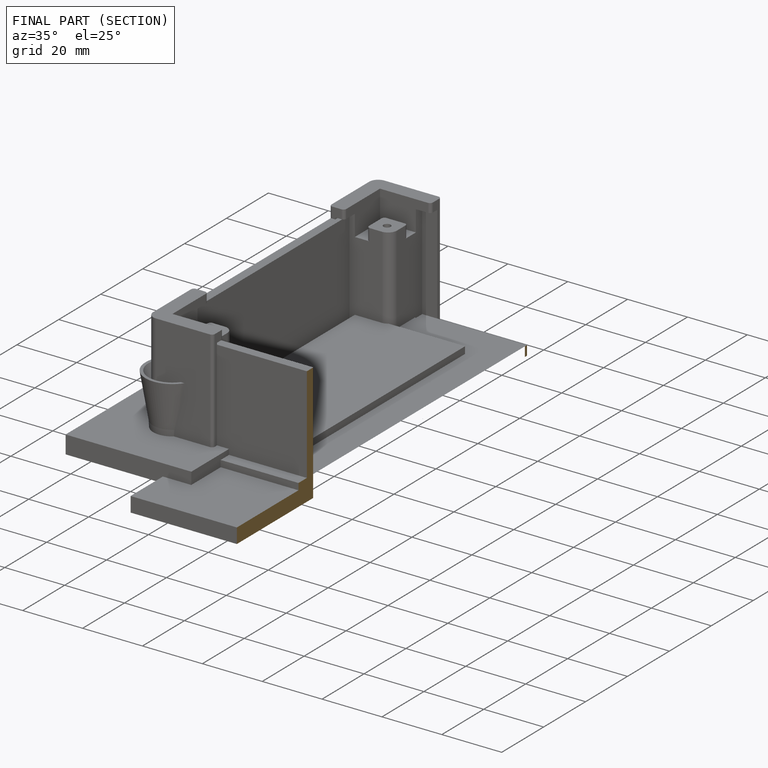
[diagram: finished part — half-section view (interior)]
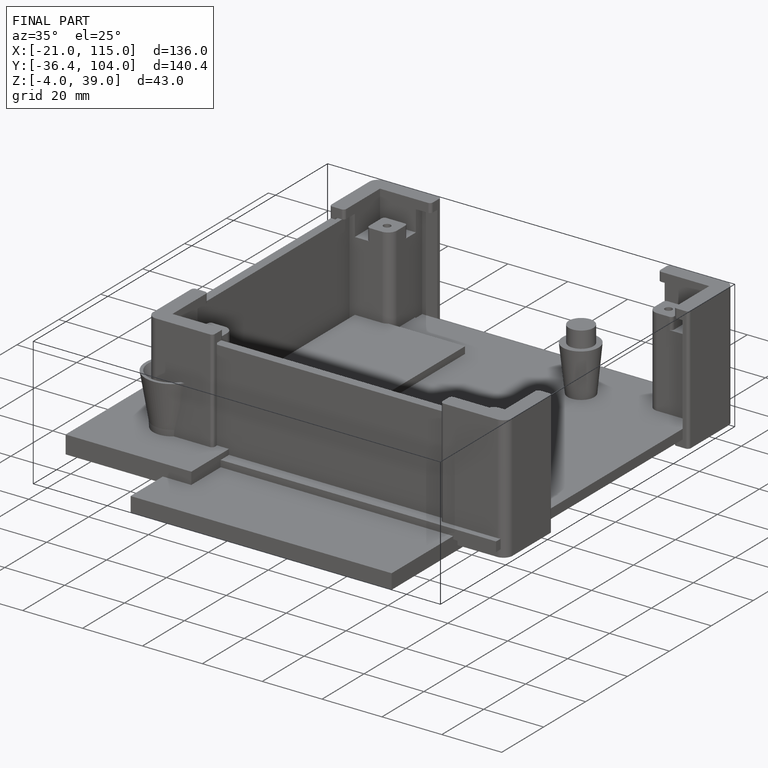
[diagram: finished part — iso view with bounding-box wireframe]
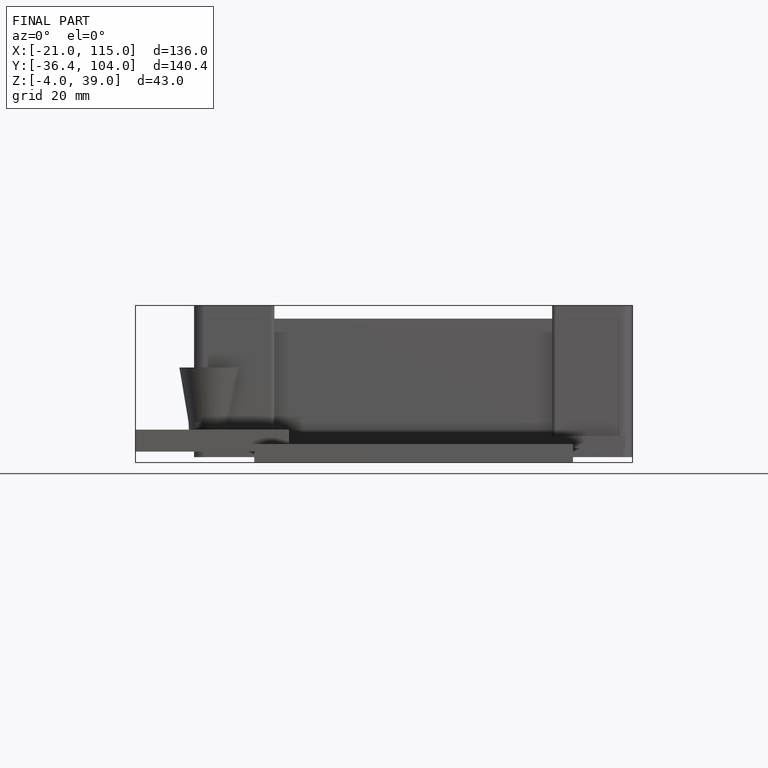
[diagram: finished part — front view with bounding-box wireframe]
